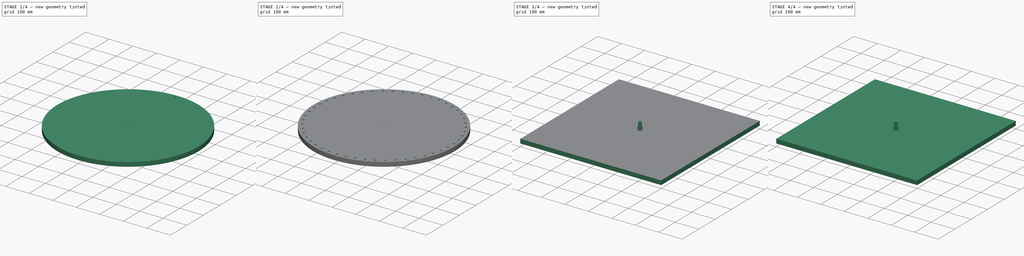
[diagram: build sequence overview — one tinted view per stage of 4, left to right]
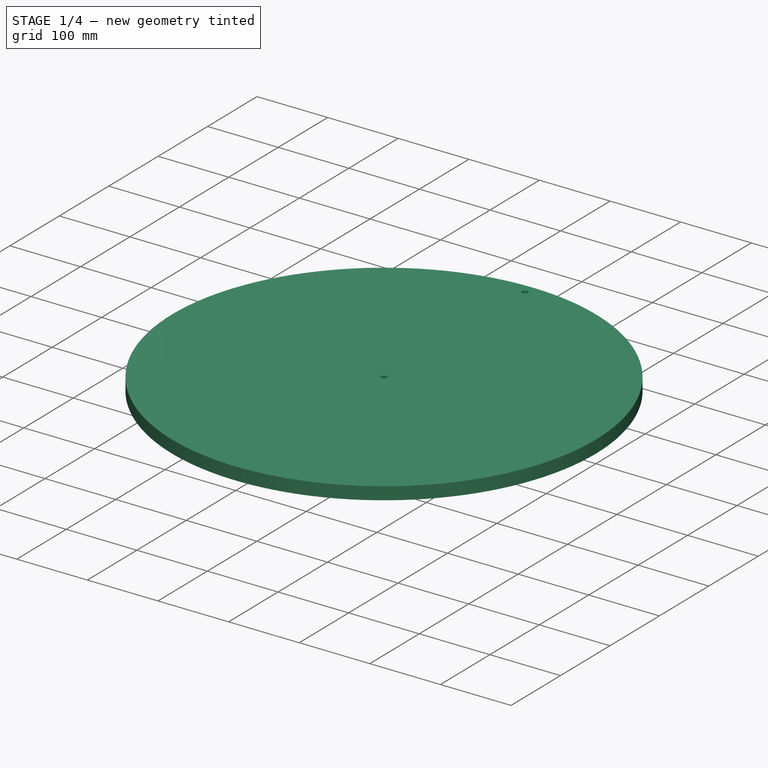
[diagram: stage 1 of 4 — iso view after this stage's code; geometry added in this stage tinted green]
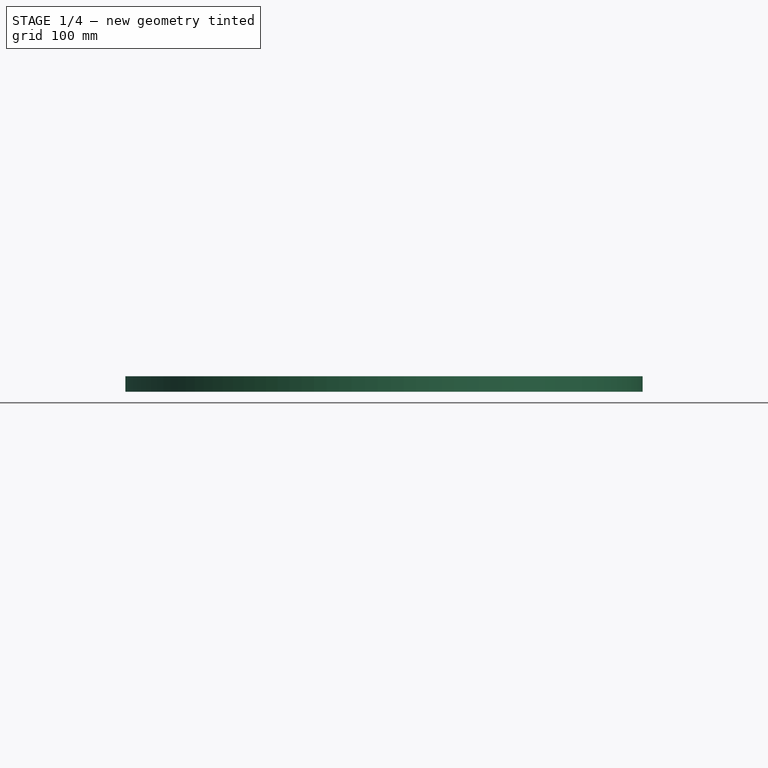
[diagram: stage 1 of 4 — front view after this stage's code; geometry added in this stage tinted green]
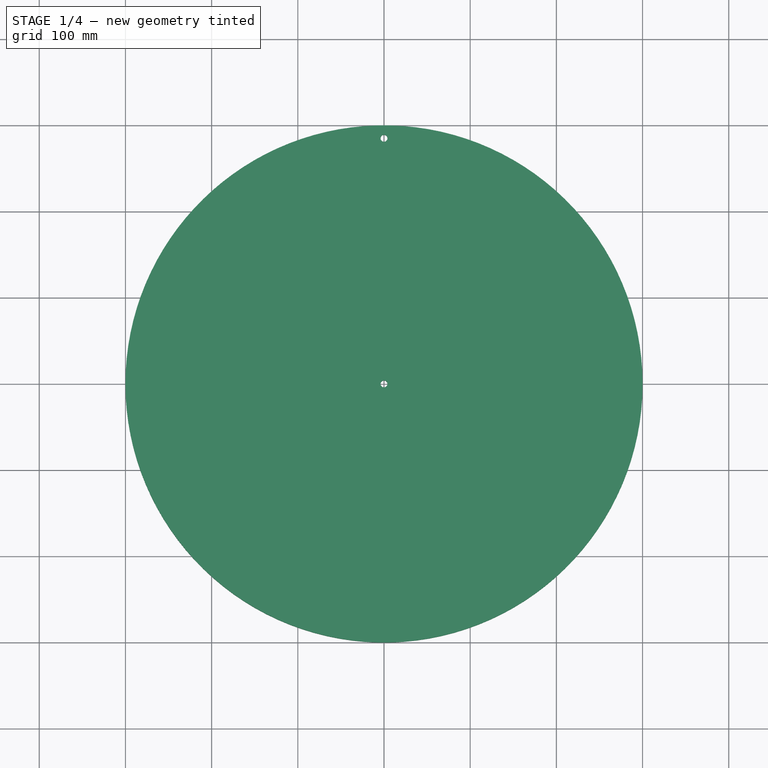
[diagram: stage 1 of 4 — top view after this stage's code; geometry added in this stage tinted green]
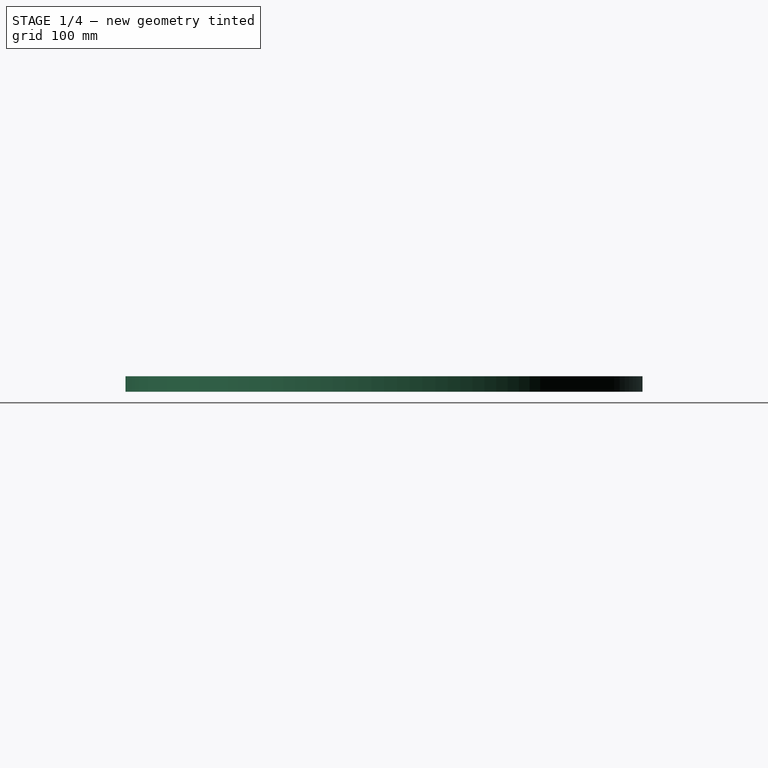
[diagram: stage 1 of 4 — right view after this stage's code; geometry added in this stage tinted green]
FCSTD DOCUMENT  (FreeCAD 0.21R33771 (Git))
Label: SpinWheelB
License: All rights reserved
LicenseURL: http://en.wikipedia.org/wiki/All_rights_reserved
objects: Part::Part2DObjectPython×182, Path::FeaturePython×11, App::DocumentObjectGroup×7, Part::FeaturePython×6, Sketcher::SketchObject×3, PartDesign::Pocket×2, App::FeaturePython×2, PartDesign::Pad×1, PartDesign::PolarPattern×1, PartDesign::Body×1
note: 200 computed .brp shape members not serialized (recipe doc carries the construction recipe); baked Part::Feature solids carry a one-line shape summary decoded from their .brp

FEATURE [Sketcher::SketchObject] Sketch
  FullyConstrained = true
  MapMode = 5
  Support = -> [XY_Plane]
  sketch-geometry (2):
    g0: Circle CenterX=0 CenterY=0 CenterZ=0 NormalX=0 NormalY=0 NormalZ=1 AngleXU=0 Radius=300
    g1: Circle CenterX=0 CenterY=0 CenterZ=0 NormalX=0 NormalY=0 NormalZ=1 AngleXU=0 Radius=4
  constraints (4):
    c: Coincident(g0,g-1)
    c: Diameter(g0) = 600
    c: Coincident(g1,g0)
    c: Diameter(g1) = 8
FEATURE [PartDesign::Pad] Pad
  Direction = (0,0,1)
  Length = 18
  Length2 = 10
  Profile = -> Sketch
  ReferenceAxis = -> Sketch [N_Axis]
  Type = 0
FEATURE [Sketcher::SketchObject] Sketch001
  FullyConstrained = true
  MapMode = 5
  Placement = pos=(0,0,18) rot=(0,0,1;0rad)
  Support = -> [Pad]
  sketch-geometry (1):
    g0: Circle CenterX=0 CenterY=285 CenterZ=0 NormalX=0 NormalY=0 NormalZ=1 AngleXU=0 Radius=4
  constraints (3):
    c: PointOnObject(g0,g-2)
    c: Diameter(g0) = 8
    c: DistanceY(g-1,g0) = 285
FEATURE [PartDesign::Pocket] Pocket
  BaseFeature = -> Pad
  Direction = (0,0,-1)
  Length = 5
  Length2 = 5
  Profile = -> Sketch001
  ReferenceAxis = -> Sketch001 [N_Axis]
  Type = 1
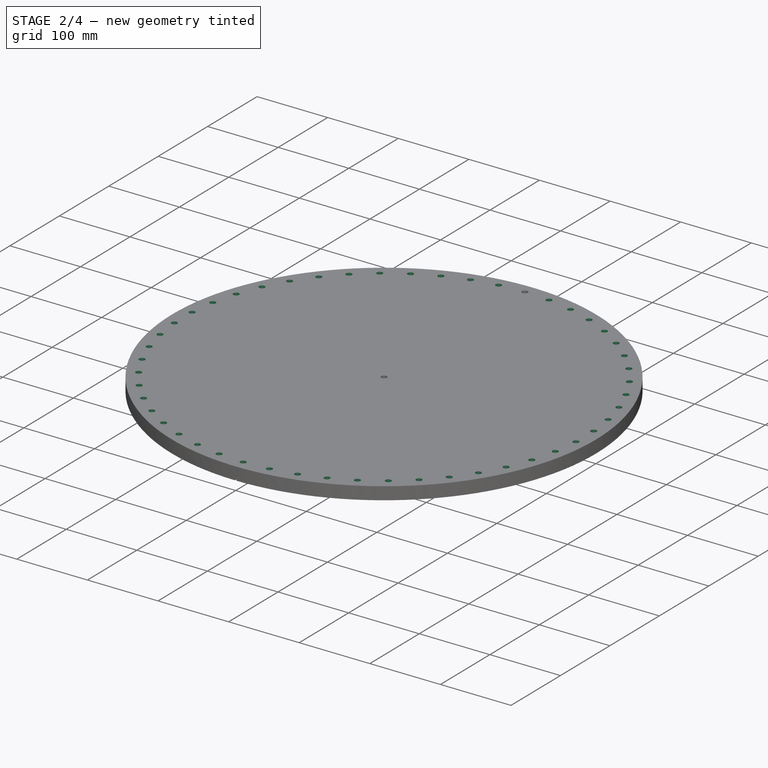
[diagram: stage 2 of 4 — iso view after this stage's code; geometry added in this stage tinted green]
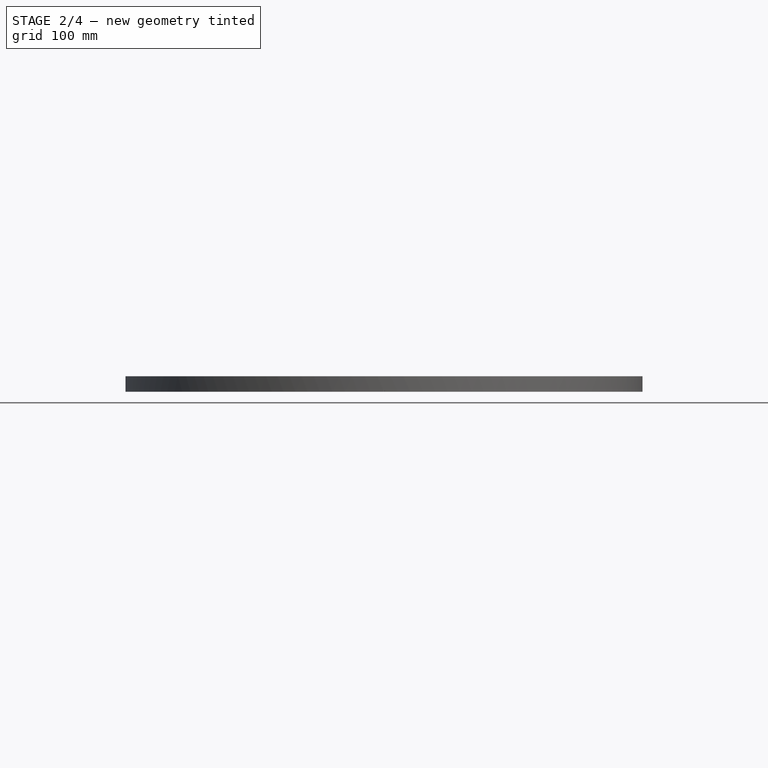
[diagram: stage 2 of 4 — front view after this stage's code; geometry added in this stage tinted green]
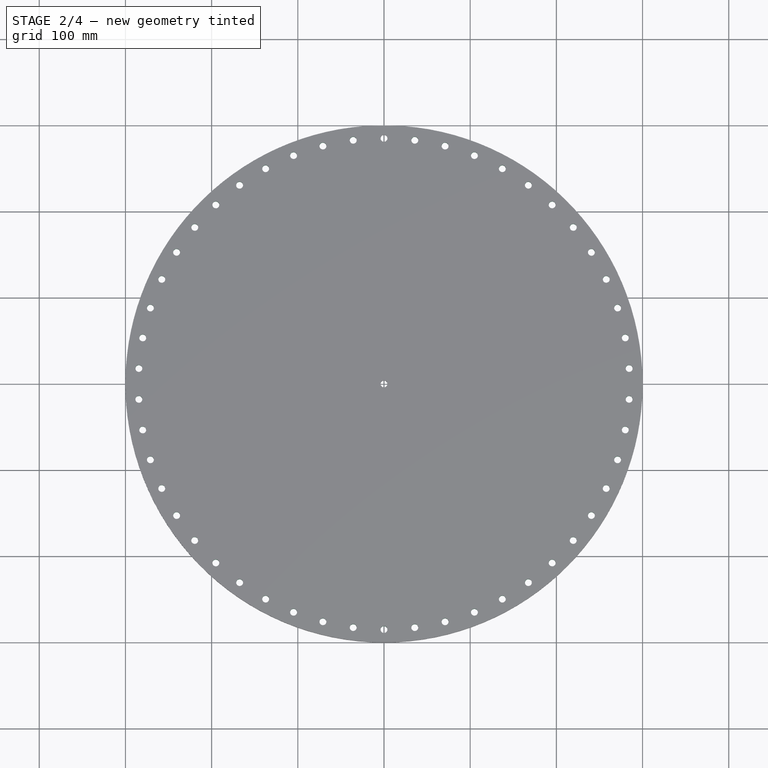
[diagram: stage 2 of 4 — top view after this stage's code; geometry added in this stage tinted green]
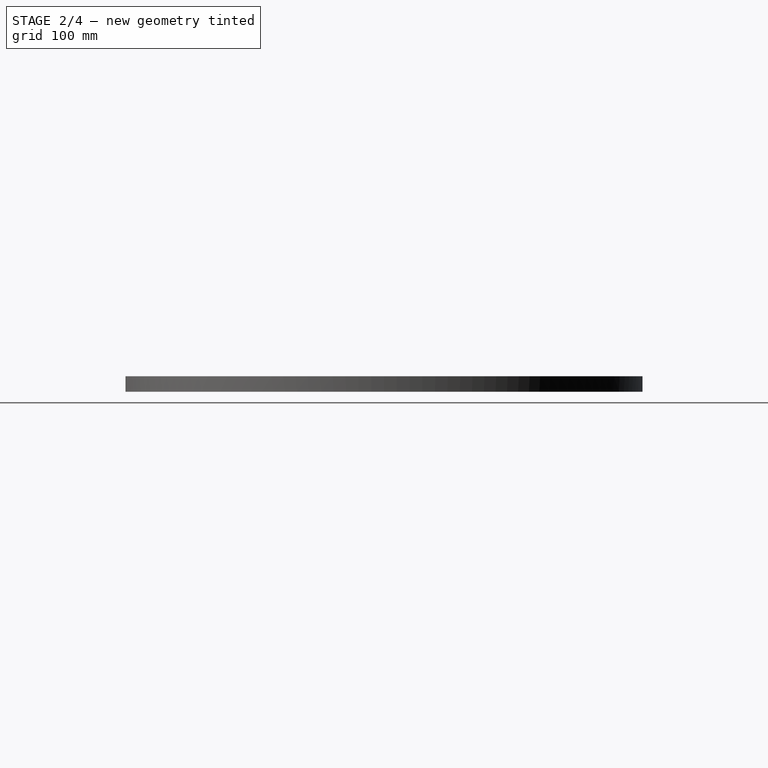
[diagram: stage 2 of 4 — right view after this stage's code; geometry added in this stage tinted green]
FEATURE [PartDesign::PolarPattern] PolarPattern
  Angle = 360
  Axis = -> Sketch001 [N_Axis]
  BaseFeature = -> Pocket
  Occurrences = 50
  Originals = -> [Pocket]
FEATURE [Path::FeaturePython] _mm_Drill  label="8mm Drill001"  # Path/CAM operation (typed FeaturePython)
  HorizFeed = 15
  HorizRapid = 0
  SpindleDir = 0
  SpindleSpeed = 8000
  Tool = -> ToolBit001
  ToolNumber = 2
  VertFeed = 3.33333
  VertRapid = 0
  expr: HorizRapid = SetupSheet.HorizRapid
  expr: VertRapid = SetupSheet.VertRapid
FEATURE [App::DocumentObjectGroup] Tools
  Group = -> [_mm_Drill]
FEATURE [Sketcher::SketchObject] Sketch002
  ExternalGeometry = -> [PolarPattern]
  FullyConstrained = false
  MapMode = 5
  Placement = pos=(0,0,0) rot=(1,0,0;3.14159rad)
  Support = -> [PolarPattern]
  sketch-geometry (4):
    g0: LineSegment StartX=-1 StartY=304.859 StartZ=0 EndX=1 EndY=304.859 EndZ=0
    g1: LineSegment StartX=1 StartY=304.859 StartZ=0 EndX=1 EndY=0 EndZ=0
    g2: LineSegment StartX=1 StartY=0 StartZ=0 EndX=-1 EndY=0 EndZ=0
    g3: LineSegment StartX=-1 StartY=0 StartZ=0 EndX=-1 EndY=304.859 EndZ=0
  constraints (10):
    c: Coincident(g0,g1)
    c: Coincident(g1,g2)
    c: Coincident(g2,g3)
    c: Coincident(g3,g0)
    c: Horizontal(g0)
    c: Horizontal(g2)
    c: Vertical(g1)
    c: Vertical(g3)
    c: Symmetric(g2,g1,g-3)
    c: DistanceX(g0,g0) = 2
FEATURE [PartDesign::Pocket] Pocket001
  BaseFeature = -> PolarPattern
  Direction = (0,0,1)
  Length = 2
  Length2 = 5
  Profile = -> Sketch002
  ReferenceAxis = -> Sketch002 [N_Axis]
  Type = 0
FEATURE [Path::FeaturePython] _5_Deg__V_Bit006  label="45 Deg. V-Bit007"  # Path/CAM operation (typed FeaturePython)
  HorizFeed = 16.6667
  HorizRapid = 0
  SpindleDir = 0
  SpindleSpeed = 12000
  Tool = -> ToolBit002
  ToolNumber = 2
  VertFeed = 3.33333
  VertRapid = 0
  expr: HorizRapid = SetupSheet001.HorizRapid
  expr: VertRapid = SetupSheet001.VertRapid
FEATURE [App::DocumentObjectGroup] Tools001
  Group = -> [_5_Deg__V_Bit006]
FEATURE [Path::FeaturePython] Vcarve  # Path/CAM operation (typed FeaturePython)
  Active = true
  BaseShapes = -> [Clone2D065,Clone2D021,Clone2D076,Clone2D006,Clone2D022,Clone2D020,Clone2D051,Clone2D071,Clone2D024,Clone2D005,Clone2D052,Clone2D050,Clone2D008,Clone2D023,Clone2D026,Clone2D053,Clone2D036,Clone2D072,Clone2D009,Clone2D010,Clone2D,Clone2D055,Clone2D035,Clone2D038,Clone2D007,Clone2D012,Clone2D011,Clone2D039,Clone2D001,Clone2D040,Clone2D073,Clone2D056,Clone2D086,Clone2D041,Clone2D088,Clone2D054,+55 more]
  ClearanceHeight = 1
  Colinear = 10
  CoolantMode = 0
  CycleTime = 01:08:31
  Discretize = 0.01
  FinalDepth = -3
  OpFinalDepth = 0
  OpStartDepth = 18
  OpStockZMax = 18
  OpStockZMin = 0
  OpToolDiameter = 16
  SafeHeight = 1
  StartDepth = 0
  Tolerance = 0.01
  ToolController = -> _5_Deg__V_Bit006
  expr: ClearanceHeight = 1
  expr: FinalDepth = -3
  expr: SafeHeight = 1
  expr: StartDepth = 0
FEATURE [Part::FeaturePython] Clone001  label="Model-Body001"  # Draft clone (typed FeaturePython)
  AttacherType = Attacher::AttachEngine3D
  Fuse = false
  Objects = -> [Body]
  PathResource = Model
  Scale = (1,1,1)
FEATURE [App::DocumentObjectGroup] Model001
  Group = -> [Clone2D,Clone2D001,Clone2D002,Clone2D003,Clone2D004,Clone2D005,Clone2D006,Clone2D007,Clone2D008,Clone2D009,Clone2D010,Clone2D011,Clone2D012,Clone2D013,Clone2D014,Clone2D015,Clone2D016,Clone2D017,Clone2D018,Clone2D019,Clone2D020,Clone2D021,Clone2D022,Clone2D023,Clone2D024,Clone2D025,Clone2D026,Clone2D027,Clone2D028,Clone2D029,Clone2D030,Clone2D031,Clone2D032,Clone2D033,Clone2D034,Clone2D035,+56 more]
FEATURE [Path::FeaturePython] Vcarve001  # Path/CAM operation (typed FeaturePython)
  Active = true
  Base = -> [Clone001]
  ClearanceHeight = 1
  Colinear = 10
  CoolantMode = 0
  CycleTime = 00:01:46
  Discretize = 0.01
  FinalDepth = -3
  OpFinalDepth = 0
  OpStartDepth = 18
  OpStockZMax = 18
  OpStockZMin = 0
  OpToolDiameter = 16
  SafeHeight = 1
  StartDepth = 0
  Tolerance = 0.01
  ToolController = -> _5_Deg__V_Bit006
  expr: ClearanceHeight = 1
  expr: FinalDepth = -3
  expr: SafeHeight = 1
  expr: StartDepth = 0
FEATURE [Path::FeaturePython] Array  # Path/CAM operation (typed FeaturePython)
  Active = true
  Angle = 360
  Base = -> [Vcarve001]
  Centre = (0,0,0)
  Copies = 50
  CopiesX = 0
  CopiesY = 0
  JitterMagnitude = (0,0,0)
  JitterPercent = 0
  JitterSeed = 0
  Offset = (0,0,0)
  SwapDirection = false
  ToolController = -> _5_Deg__V_Bit006
  Type = 2
FEATURE [App::DocumentObjectGroup] Operations001
  Group = -> [Vcarve,Vcarve001,Array]
FEATURE [Path::FeaturePython] Job001  label="VCarveJob"  # Path/CAM operation (typed FeaturePython)
  CycleTime = 01:10:17
  Fixtures = G54
  GeometryTolerance = 0.01
  JobType = 0
  Model = -> Model001
  Operations = -> Operations001
  OrderOutputBy = 0
  PostProcessor = 4
  PostProcessorOutputFile = %D/%d-%j.ngc
  SetupSheet = -> SetupSheet001
  SplitOutput = false
  Stock = -> Stock002
  Tools = -> Tools001
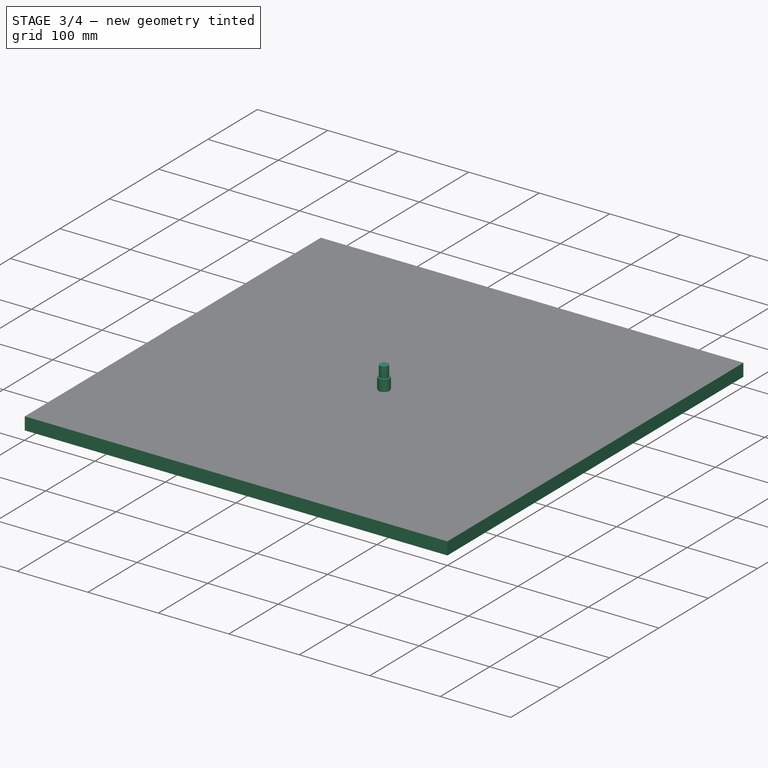
[diagram: stage 3 of 4 — iso view after this stage's code; geometry added in this stage tinted green]
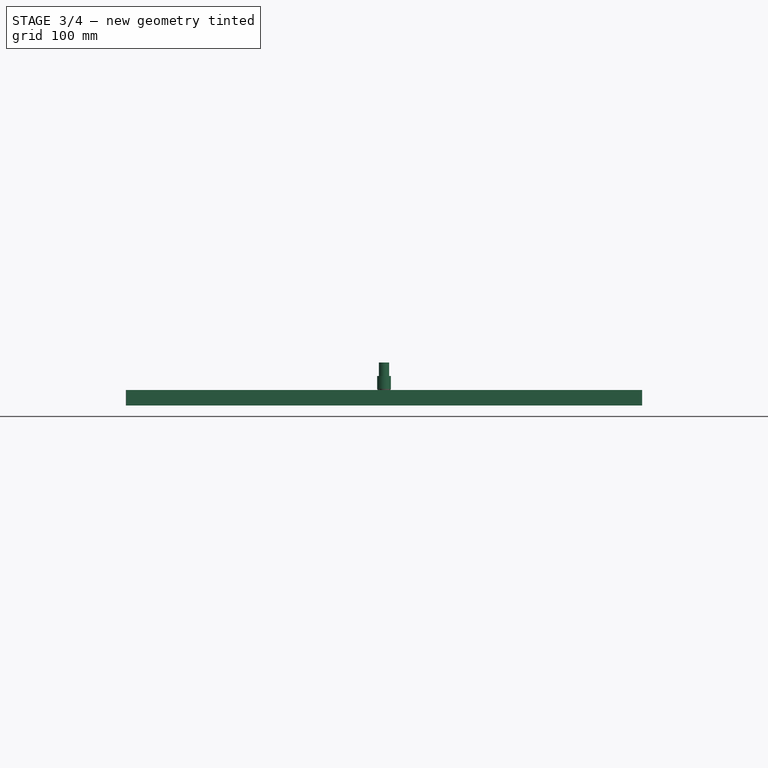
[diagram: stage 3 of 4 — front view after this stage's code; geometry added in this stage tinted green]
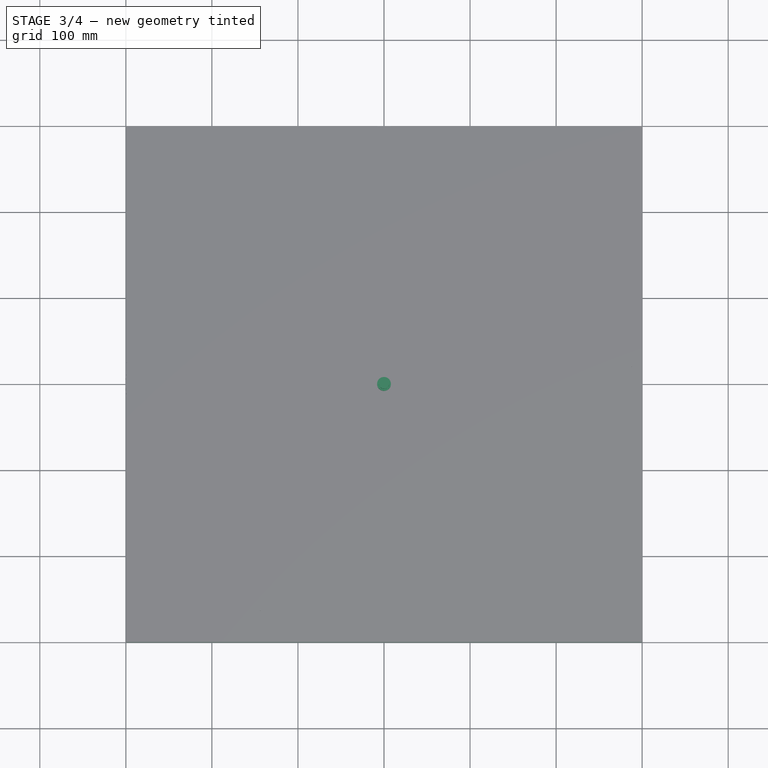
[diagram: stage 3 of 4 — top view after this stage's code; geometry added in this stage tinted green]
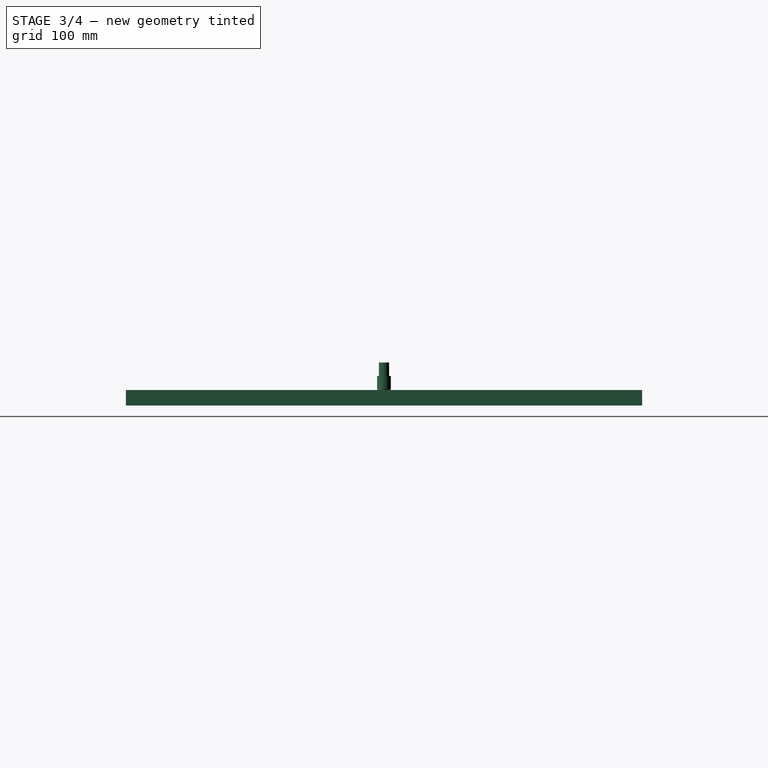
[diagram: stage 3 of 4 — right view after this stage's code; geometry added in this stage tinted green]
FEATURE [Part::FeaturePython] ToolBit001  label="8mm Drill"  # Path/CAM toolbit (typed FeaturePython)
  BitPropertyNames = Chipload | Diameter | Flutes | Length | Material | TipAngle
  BitShape = /app/freecad/Mod/Path/Tools/Shape/drill.fcstd
  Chipload = 0
  Diameter = 8
  File = <userpath>/MensShed/CNCRouter/FreeCAD/Bit/8mm_Drill.fctb
  Flutes = 0
  Length = 50
  Material = 0
  ShapeName = drill
  TipAngle = 119
FEATURE [App::DocumentObjectGroup] Model
  Group = -> [Clone]
FEATURE [Path::FeaturePython] Drilling  # Path/CAM operation (typed FeaturePython)
  Active = true
  AddTipLength = false
  Base = -> [Clone]
  ClearanceHeight = 23
  CoolantMode = 0
  CycleTime = 00:02:28
  Disabled = Clone.Face41
  DwellEnabled = false
  DwellTime = 1
  ExtraOffset = 0
  FinalDepth = 3
  KeepToolDown = false
  OpFinalDepth = 18
  OpStartDepth = 19
  OpStockZMax = 18
  OpStockZMin = 0
  OpToolDiameter = 8
  PeckDepth = 6
  PeckEnabled = false
  RetractHeight = 21
  RetractMode = 0
  SafeHeight = 21
  StartDepth = 18
  ToolController = -> _mm_Drill
  chipBreakEnabled = false
  expr: ClearanceHeight = OpStockZMax + SetupSheet.ClearanceHeightOffset
  expr: FinalDepth = 3
  expr: PeckDepth = OpToolDiameter * 0.75
  expr: RetractHeight = StartDepth + SetupSheet.SafeHeightOffset
  expr: SafeHeight = OpStockZMax + SetupSheet.SafeHeightOffset
  expr: StartDepth = 18
FEATURE [Path::FeaturePython] Drilling001  label="DrillingCentre"  # Path/CAM operation (typed FeaturePython)
  Active = true
  AddTipLength = false
  Base = -> [Clone]
  ClearanceHeight = 23
  CoolantMode = 0
  CycleTime = 00:00:31
  Disabled = Clone.Face4 | Clone.Face5 | Clone.Face6 | Clone.Face7 | Clone.Face8 | Clone.Face9 | Clone.Face10 | Clone.Face11 | Clone.Face12 | Clone.Face13 | Clone.Face14 | Clone.Face15 | Clone.Face16 | Clone.Face17 | Clone.Face18 | Clone.Face19 | Clone.Face20 | Clone.Face21 | Clone.Face22 | Clone.Face23 | Clone.Face24 | Clone.Face25 | Clone.Face26 | Clone.Face27 | Clone.Face28 | Clone.Face29 | Clone.Face30 | Clone.Face31 | Clone.Face32 | Clone.Face33 | Clone.Face34 | Clone.Face35 | Clone.Face36 | Clone.Face37 | Clone.Face38 | Clone.Face39 | Clone.Face40 | Clone.Face42 | Clone.Face43 | Clone.Face44 | Clone.Face45 | Clone.Face46 | Clone.Face47 | Clone.Face48 | Clone.Face49 | Clone.Face50 | Clone.Face51 | Clone.Face52 | Clone.Face53 | Clone.Face54
  DwellEnabled = false
  DwellTime = 1
  ExtraOffset = 0
  FinalDepth = 3
  KeepToolDown = false
  OpFinalDepth = 18
  OpStartDepth = 19
  OpStockZMax = 18
  OpStockZMin = 0
  OpToolDiameter = 8
  PeckDepth = 6
  PeckEnabled = false
  RetractHeight = 21
  RetractMode = 0
  SafeHeight = 21
  StartDepth = 18
  ToolController = -> _mm_Drill
  chipBreakEnabled = false
  expr: ClearanceHeight = OpStockZMax + SetupSheet.ClearanceHeightOffset
  expr: FinalDepth = 3
  expr: PeckDepth = OpToolDiameter * 0.75
  expr: RetractHeight = StartDepth + SetupSheet.SafeHeightOffset
  expr: SafeHeight = OpStockZMax + SetupSheet.SafeHeightOffset
  expr: StartDepth = 18
FEATURE [Path::FeaturePython] Profile  # Path/CAM operation (typed FeaturePython)
  Active = true
  AreaParams:
    Tolerance = 1e-07
    FitArcs = True
    Simplify = False
    CleanDistance = 0.0
    Accuracy = 0.01
    Unit = 1.0
    MinArcPoints = 4
    MaxArcPoints = 100
    ClipperScale = 10000000.0
    Fill = 0
    Coplanar = 0
    Reorient = True
    Outline = False
    Explode = False
    OpenMode = 0
    Deflection = 0.01
    SubjectFill = 0
    ClipFill = 0
    Offset = 4.0
    ExtraPass = 0
    Stepover = 0.0
    LastStepover = 0.0
    JoinType = 0
    EndType = 0
    MiterLimit = 2.0
    RoundPrecision = 0.0
    PocketMode = 0
    ToolRadius = 1.0
    PocketExtraOffset = 0.0
    PocketStepover = 0.0
    PocketLastStepover = 0.0
    FromCenter = False
    Angle = 45.0
    AngleShift = 0.0
    Shift = 0.0
    Thicken = False
    SectionCount = -1
    Stepdown = 1.0
    SectionOffset = 0.0
    SectionTolerance = 1e-07
    SectionMode = 2
    Project = False
  Base = -> [Clone]
  ClearanceHeight = 23
  CoolantMode = 0
  CycleTime = 00:00:06
  Direction = 0
  FinalDepth = 0
  HandleMultipleFeatures = 0
  JoinType = 0
  MiterLimit = 0.1
  OffsetExtra = 0
  OpFinalDepth = 0
  OpStartDepth = 18
  OpStockZMax = 18
  OpStockZMin = 0
  OpToolDiameter = 8
  PathParams = {'orientation': 1, 'feedrate': 15.0, 'feedrate_v': 3.3333333333333335, 'verbose': True, 'resume_height': 21.0, 'retraction': 23.0, 'return_end': True, 'preamble': False}
  SafeHeight = 21
  Side = 0
  SplitArcs = false
  StartDepth = 18
  StartPoint = (0,0,0)
  StepDown = 5
  ToolController = -> _mm_Drill
  UseComp = true
  UseStartPoint = false
  processCircles = false
  processHoles = false
  processPerimeter = true
  expr: ClearanceHeight = OpStockZMax + SetupSheet.ClearanceHeightOffset
  expr: FinalDepth = 0
  expr: SafeHeight = OpStockZMax + SetupSheet.SafeHeightOffset
  expr: StartDepth = 18
  expr: StepDown = 5
FEATURE [Path::FeaturePython] DressupTag  # Path/CAM operation (typed FeaturePython)
  Angle = 45
  Base = -> Profile
  Disabled = [0,1,2,3]
  Height = 9
  Positions = (4) [(-207.863,-221.831,1e-07),(-221.831,207.863,1e-07),(111.757,282.712,1e-07),(282.712,-111.757,1e-07)]
  Radius = 0
  SegmentationFactor = 50
  Width = 95.5
FEATURE [App::DocumentObjectGroup] Operations
  Group = -> [Drilling,Drilling001,DressupTag]
FEATURE [Path::FeaturePython] Job  label="HolesJob"  # Path/CAM operation (typed FeaturePython)
  CycleTime = 00:03:05
  Fixtures = G54
  GeometryTolerance = 0.01
  JobType = 0
  LastPostProcessDate = 2024-05-14 08:25:52.418972
  LastPostProcessOutput = <userpath>/MensShed/CNCRouter/JNorris/SpinWheelA-Job.ngc
  Model = -> Model
  Operations = -> Operations
  OrderOutputBy = 0
  PostProcessor = 3
  PostProcessorOutputFile = %D/%d-%j.ngc
  SetupSheet = -> SetupSheet
  SplitOutput = false
  Stock = -> Stock001
  Tools = -> Tools
FEATURE [Part::Part2DObjectPython] ShapeString  label="5"  # Draft 2D object (typed FeaturePython)
  FontFile = /run/user/1000/doc/a87cd573/FreeMono.ttf
  MakeFace = true
  Placement = pos=(262,0,0) rot=(0,0,-1;1.5708rad)
  Size = 8
  String = 5
  Tracking = 0
FEATURE [Part::Part2DObjectPython] ShapeString001  label="2+[space]"  # Draft 2D object (typed FeaturePython)
  FontFile = /run/user/1000/doc/a87cd573/FreeMono.ttf
  MakeFace = true
  Placement = pos=(261.77,10.9714,0) rot=(0,0,-1;1.52891rad)
  Size = 8
  String = 2
  Tracking = 0
FEATURE [Part::Part2DObjectPython] ShapeString002  label="7"  # Draft 2D object (typed FeaturePython)
  FontFile = /run/user/1000/doc/a87cd573/FreeMono.ttf
  MakeFace = true
  Placement = pos=(259.934,32.8373,0) rot=(0,0,-1;1.44513rad)
  Size = 8
  String = 7
  Tracking = 0
FEATURE [Part::Part2DObjectPython] ShapeString003  label="1+[space]"  # Draft 2D object (typed FeaturePython)
  FontFile = /run/user/1000/doc/a87cd573/FreeMono.ttf
  MakeFace = true
  Placement = pos=(258.331,43.6934,0) rot=(0,0,-1;1.40325rad)
  Size = 8
  String = 1
  Tracking = 0
FEATURE [Part::Part2DObjectPython] ShapeString004  label="2+[space]001"  # Draft 2D object (typed FeaturePython)
  FontFile = /run/user/1000/doc/a87cd573/FreeMono.ttf
  MakeFace = true
  Placement = pos=(253.769,65.1568,0) rot=(0,0,-1;1.31947rad)
  Size = 8
  String = 2
  Tracking = 0
FEATURE [Part::Part2DObjectPython] ShapeString005  label="2"  # Draft 2D object (typed FeaturePython)
  FontFile = /run/user/1000/doc/a87cd573/FreeMono.ttf
  MakeFace = true
  Placement = pos=(243.601,96.4486,0) rot=(0,0,-1;1.19381rad)
  Size = 8
  String = 2
  Tracking = 0
FEATURE [Part::Part2DObjectPython] ShapeString006  label="4+[space]"  # Draft 2D object (typed FeaturePython)
  FontFile = /run/user/1000/doc/a87cd573/FreeMono.ttf
  MakeFace = true
  Placement = pos=(239.349,106.565,0) rot=(0,0,-1;1.15192rad)
  Size = 8
  String = 4
  Tracking = 0
FEATURE [Part::Part2DObjectPython] ShapeString007  label="6"  # Draft 2D object (typed FeaturePython)
  FontFile = /run/user/1000/doc/a87cd573/FreeMono.ttf
  MakeFace = true
  Placement = pos=(229.592,126.219,0) rot=(0,0,-1;1.06814rad)
  Size = 8
  String = 6
  Tracking = 0
FEATURE [Part::Part2DObjectPython] ShapeString008  label="2001+[space]"  # Draft 2D object (typed FeaturePython)
  FontFile = /run/user/1000/doc/a87cd573/FreeMono.ttf
  MakeFace = true
  Placement = pos=(224.105,135.723,0) rot=(0,0,-1;1.02625rad)
  Size = 8
  String = 2
  Tracking = 0
FEATURE [Part::Part2DObjectPython] ShapeString009  label="1"  # Draft 2D object (typed FeaturePython)
  FontFile = /run/user/1000/doc/a87cd573/FreeMono.ttf
  MakeFace = true
  Placement = pos=(211.962,154,0) rot=(0,0,-1;0.942478rad)
  Size = 8
  String = 1
  Tracking = 0
FEATURE [Part::Part2DObjectPython] ShapeString010  label="4+[space]001"  # Draft 2D object (typed FeaturePython)
  FontFile = /run/user/1000/doc/a87cd573/FreeMono.ttf
  MakeFace = true
  Placement = pos=(205.328,162.741,0) rot=(0,0,-1;0.90059rad)
  Size = 8
  String = 4
  Tracking = 0
FEATURE [Part::Part2DObjectPython] ShapeString011  label="4"  # Draft 2D object (typed FeaturePython)
  FontFile = /run/user/1000/doc/a87cd573/FreeMono.ttf
  MakeFace = true
  Placement = pos=(190.99,179.351,0) rot=(0,0,-1;0.816814rad)
  Size = 8
  String = 4
  Tracking = 0
FEATURE [Part::Part2DObjectPython] ShapeString012  label="1001+[space]"  # Draft 2D object (typed FeaturePython)
  FontFile = /run/user/1000/doc/a87cd573/FreeMono.ttf
  MakeFace = true
  Placement = pos=(183.312,187.192,0) rot=(0,0,-1;0.774926rad)
  Size = 8
  String = 1
  Tracking = 0
FEATURE [Part::Part2DObjectPython] ShapeString013  label="2001"  # Draft 2D object (typed FeaturePython)
  FontFile = /run/user/1000/doc/a87cd573/FreeMono.ttf
  MakeFace = true
  Placement = pos=(167.005,201.874,0) rot=(0,0,-1;0.69115rad)
  Size = 8
  String = 2
  Tracking = 0
FEATURE [Part::Part2DObjectPython] ShapeString014  label="2002+[space]"  # Draft 2D object (typed FeaturePython)
  FontFile = /run/user/1000/doc/a87cd573/FreeMono.ttf
  MakeFace = true
  Placement = pos=(158.405,208.691,0) rot=(0,0,-1;0.649262rad)
  Size = 8
  String = 2
  Tracking = 0
FEATURE [Part::Part2DObjectPython] ShapeString015  label="4001"  # Draft 2D object (typed FeaturePython)
  FontFile = /run/user/1000/doc/a87cd573/FreeMono.ttf
  MakeFace = true
  Placement = pos=(140.387,221.214,0) rot=(0,0,-1;0.565487rad)
  Size = 8
  String = 4
  Tracking = 0
FEATURE [Part::Part2DObjectPython] ShapeString016  label="3+[space]"  # Draft 2D object (typed FeaturePython)
  FontFile = /run/user/1000/doc/a87cd573/FreeMono.ttf
  MakeFace = true
  Placement = pos=(131,226.899,0) rot=(0,0,-1;0.523599rad)
  Size = 8
  String = 3
  Tracking = 0
FEATURE [Part::Part2DObjectPython] ShapeString017  label="6001"  # Draft 2D object (typed FeaturePython)
  FontFile = /run/user/1000/doc/a87cd573/FreeMono.ttf
  MakeFace = true
  Placement = pos=(111.554,237.065,0) rot=(0,0,-1;0.439823rad)
  Size = 8
  String = 6
  Tracking = 0
FEATURE [Part::Part2DObjectPython] ShapeString018  label="1001+[space]001"  # Draft 2D object (typed FeaturePython)
  FontFile = /run/user/1000/doc/a87cd573/FreeMono.ttf
  MakeFace = true
  Placement = pos=(101.529,241.528,0) rot=(0,0,-1;0.397935rad)
  Size = 8
  String = 1
  Tracking = 0
FEATURE [Part::Part2DObjectPython] ShapeString019  label="1001+[space]002"  # Draft 2D object (typed FeaturePython)
  FontFile = /run/user/1000/doc/a87cd573/FreeMono.ttf
  MakeFace = true
  Placement = pos=(80.9625,249.177,0) rot=(0,0,-1;0.314159rad)
  Size = 8
  String = 1
  Tracking = 0
FEATURE [Part::Part2DObjectPython] ShapeString020  label="0"  # Draft 2D object (typed FeaturePython)
  FontFile = /run/user/1000/doc/a87cd573/FreeMono.ttf
  MakeFace = true
  Placement = pos=(49.0939,257.359,0) rot=(0,0,-1;0.188496rad)
  Size = 8
  String = 0
  Tracking = 0
FEATURE [Part::Part2DObjectPython] ShapeString021  label="4002+[space]"  # Draft 2D object (typed FeaturePython)
  FontFile = /run/user/1000/doc/a87cd573/FreeMono.ttf
  MakeFace = true
  Placement = pos=(38.2738,259.189,0) rot=(0,0,-1;0.146608rad)
  Size = 8
  String = 4
  Tracking = 0
FEATURE [Part::Part2DObjectPython] ShapeString022  label="3"  # Draft 2D object (typed FeaturePython)
  FontFile = /run/user/1000/doc/a87cd573/FreeMono.ttf
  MakeFace = true
  Placement = pos=(16.4511,261.483,0) rot=(0,0,-1;0.062832rad)
  Size = 8
  String = 3
  Tracking = 0
FEATURE [Part::Part2DObjectPython] ShapeString023  label="3001+[space]"  # Draft 2D object (typed FeaturePython)
  FontFile = /run/user/1000/doc/a87cd573/FreeMono.ttf
  MakeFace = true
  Placement = pos=(5.48691,261.943,0) rot=(0,0,-1;0.020944rad)
  Size = 8
  String = 3
  Tracking = 0
FEATURE [Part::Part2DObjectPython] ShapeString024  label="1001"  # Draft 2D object (typed FeaturePython)
  FontFile = /run/user/1000/doc/a87cd573/FreeMono.ttf
  MakeFace = true
  Placement = pos=(-16.4511,261.483,0) rot=(0,0,1;0.062832rad)
  Size = 8
  String = 1
  Tracking = 0
FEATURE [Part::Part2DObjectPython] ShapeString025  label="1002+[space]"  # Draft 2D object (typed FeaturePython)
  FontFile = /run/user/1000/doc/a87cd573/FreeMono.ttf
  MakeFace = true
  Placement = pos=(-27.3865,260.565,0) rot=(0,0,1;0.10472rad)
  Size = 8
  String = 1
  Tracking = 0
FEATURE [Part::Part2DObjectPython] ShapeString026  label="1002"  # Draft 2D object (typed FeaturePython)
  FontFile = /run/user/1000/doc/a87cd573/FreeMono.ttf
  MakeFace = true
  Placement = pos=(-49.0939,257.359,0) rot=(0,0,1;0.188496rad)
  Size = 8
  String = 1
  Tracking = 0
FEATURE [Part::Part2DObjectPython] ShapeString027  label="3001+[space]001"  # Draft 2D object (typed FeaturePython)
  FontFile = /run/user/1000/doc/a87cd573/FreeMono.ttf
  MakeFace = true
  Placement = pos=(-59.8279,255.078,0) rot=(0,0,1;0.230383rad)
  Size = 8
  String = 3
  Tracking = 0
FEATURE [Part::Part2DObjectPython] ShapeString028  label="0001"  # Draft 2D object (typed FeaturePython)
  FontFile = /run/user/1000/doc/a87cd573/FreeMono.ttf
  MakeFace = true
  Placement = pos=(-80.9625,249.177,0) rot=(0,0,1;0.314159rad)
  Size = 8
  String = 0
  Tracking = 0
FEATURE [Part::Part2DObjectPython] ShapeString029  label="3001+[space]002"  # Draft 2D object (typed FeaturePython)
  FontFile = /run/user/1000/doc/a87cd573/FreeMono.ttf
  MakeFace = true
  Placement = pos=(-91.3259,245.568,0) rot=(0,0,1;0.356047rad)
  Size = 8
  String = 3
  Tracking = 0
FEATURE [Part::Part2DObjectPython] ShapeString030  label="6002"  # Draft 2D object (typed FeaturePython)
  FontFile = /run/user/1000/doc/a87cd573/FreeMono.ttf
  MakeFace = true
  Placement = pos=(-111.554,237.065,0) rot=(0,0,1;0.439823rad)
  Size = 8
  String = 6
  Tracking = 0
FEATURE [Part::Part2DObjectPython] ShapeString031  label="4002+[space]001"  # Draft 2D object (typed FeaturePython)
  FontFile = /run/user/1000/doc/a87cd573/FreeMono.ttf
  MakeFace = true
  Placement = pos=(-121.384,232.185,0) rot=(0,0,1;0.481711rad)
  Size = 8
  String = 4
  Tracking = 0
FEATURE [Part::Part2DObjectPython] ShapeString032  label="9"  # Draft 2D object (typed FeaturePython)
  FontFile = /run/user/1000/doc/a87cd573/FreeMono.ttf
  MakeFace = true
  Placement = pos=(-140.387,221.214,0) rot=(0,0,1;0.565487rad)
  Size = 8
  String = 9
  Tracking = 0
FEATURE [Part::Part2DObjectPython] ShapeString033  label="3001+[space]003"  # Draft 2D object (typed FeaturePython)
  FontFile = /run/user/1000/doc/a87cd573/FreeMono.ttf
  MakeFace = true
  Placement = pos=(-149.527,215.141,0) rot=(0,0,1;0.607375rad)
  Size = 8
  String = 3
  Tracking = 0
FEATURE [Part::Part2DObjectPython] ShapeString034  label="9001+[space]"  # Draft 2D object (typed FeaturePython)
  FontFile = /run/user/1000/doc/a87cd573/FreeMono.ttf
  MakeFace = true
  Placement = pos=(-167.005,201.874,0) rot=(0,0,1;0.69115rad)
  Size = 8
  String = 9
  Tracking = 0
FEATURE [Part::Part2DObjectPython] ShapeString035  label="4002"  # Draft 2D object (typed FeaturePython)
  FontFile = /run/user/1000/doc/a87cd573/FreeMono.ttf
  MakeFace = true
  Placement = pos=(-190.99,179.351,0) rot=(0,0,1;0.816814rad)
  Size = 8
  String = 4
  Tracking = 0
FEATURE [Part::Part2DObjectPython] ShapeString036  label="4003+[space]"  # Draft 2D object (typed FeaturePython)
  FontFile = /run/user/1000/doc/a87cd573/FreeMono.ttf
  MakeFace = true
  Placement = pos=(-198.333,171.196,0) rot=(0,0,1;0.858702rad)
  Size = 8
  String = 4
  Tracking = 0
FEATURE [Part::Part2DObjectPython] ShapeString037  label="8"  # Draft 2D object (typed FeaturePython)
  FontFile = /run/user/1000/doc/a87cd573/FreeMono.ttf
  MakeFace = true
  Placement = pos=(-211.962,154,0) rot=(0,0,1;0.942478rad)
  Size = 8
  String = 8
  Tracking = 0
FEATURE [Part::Part2DObjectPython] ShapeString038  label="2002+[space]001"  # Draft 2D object (typed FeaturePython)
  FontFile = /run/user/1000/doc/a87cd573/FreeMono.ttf
  MakeFace = true
  Placement = pos=(-218.225,144.989,0) rot=(0,0,1;0.984366rad)
  Size = 8
  String = 2
  Tracking = 0
FEATURE [Part::Part2DObjectPython] ShapeString039  label="5001+[space]"  # Draft 2D object (typed FeaturePython)
  FontFile = /run/user/1000/doc/a87cd573/FreeMono.ttf
  MakeFace = true
  Placement = pos=(-229.592,126.219,0) rot=(0,0,1;1.06814rad)
  Size = 8
  String = 5
  Tracking = 0
FEATURE [Part::Part2DObjectPython] ShapeString040  label="9001"  # Draft 2D object (typed FeaturePython)
  FontFile = /run/user/1000/doc/a87cd573/FreeMono.ttf
  MakeFace = true
  Placement = pos=(-243.601,96.4486,0) rot=(0,0,1;1.19381rad)
  Size = 8
  String = 9
  Tracking = 0
FEATURE [Part::Part2DObjectPython] ShapeString041  label="2002+[space]002"  # Draft 2D object (typed FeaturePython)
  FontFile = /run/user/1000/doc/a87cd573/FreeMono.ttf
  MakeFace = true
  Placement = pos=(-247.427,86.1631,0) rot=(0,0,1;1.23569rad)
  Size = 8
  String = 2
  Tracking = 0
FEATURE [Part::Part2DObjectPython] ShapeString042  label="1003"  # Draft 2D object (typed FeaturePython)
  FontFile = /run/user/1000/doc/a87cd573/FreeMono.ttf
  MakeFace = true
  Placement = pos=(-253.769,65.1568,0) rot=(0,0,1;1.31947rad)
  Size = 8
  String = 1
  Tracking = 0
FEATURE [Part::Part2DObjectPython] ShapeString043  label="2002+[space]003"  # Draft 2D object (typed FeaturePython)
  FontFile = /run/user/1000/doc/a87cd573/FreeMono.ttf
  MakeFace = true
  Placement = pos=(-256.275,54.4729,0) rot=(0,0,1;1.36136rad)
  Size = 8
  String = 2
  Tracking = 0
FEATURE [Part::Part2DObjectPython] ShapeString044  label="3001"  # Draft 2D object (typed FeaturePython)
  FontFile = /run/user/1000/doc/a87cd573/FreeMono.ttf
  MakeFace = true
  Placement = pos=(-259.934,32.8373,0) rot=(0,0,1;1.44513rad)
  Size = 8
  String = 3
  Tracking = 0
FEATURE [Part::Part2DObjectPython] ShapeString045  label="2002+[space]004"  # Draft 2D object (typed FeaturePython)
  FontFile = /run/user/1000/doc/a87cd573/FreeMono.ttf
  MakeFace = true
  Placement = pos=(-261.081,21.9236,0) rot=(0,0,1;1.48702rad)
  Size = 8
  String = 2
  Tracking = 0
FEATURE [Part::Part2DObjectPython] ShapeString046  label="9002"  # Draft 2D object (typed FeaturePython)
  FontFile = /run/user/1000/doc/a87cd573/FreeMono.ttf
  MakeFace = true
  Placement = pos=(-262,3.21e-14,0) rot=(0,0,1;1.5708rad)
  Size = 8
  String = 9
  Tracking = 0
FEATURE [Part::Part2DObjectPython] ShapeString047  label="4003+[space]001"  # Draft 2D object (typed FeaturePython)
  FontFile = /run/user/1000/doc/a87cd573/FreeMono.ttf
  MakeFace = true
  Placement = pos=(-261.77,-10.9714,0) rot=(0,0,1;1.61268rad)
  Size = 8
  String = 4
  Tracking = 0
FEATURE [Part::Part2DObjectPython] ShapeString048  label="3002+[space]"  # Draft 2D object (typed FeaturePython)
  FontFile = /run/user/1000/doc/a87cd573/FreeMono.ttf
  MakeFace = true
  Placement = pos=(-259.934,-32.8373,0) rot=(0,0,1;1.69646rad)
  Size = 8
  String = 3
  Tracking = 0
FEATURE [Part::Part2DObjectPython] ShapeString049  label="0002"  # Draft 2D object (typed FeaturePython)
  FontFile = /run/user/1000/doc/a87cd573/FreeMono.ttf
  MakeFace = true
  Placement = pos=(-253.769,-65.1568,0) rot=(0,0,1;1.82212rad)
  Size = 8
  String = 0
  Tracking = 0
FEATURE [Part::Part2DObjectPython] ShapeString050  label="5001+[space]001"  # Draft 2D object (typed FeaturePython)
  FontFile = /run/user/1000/doc/a87cd573/FreeMono.ttf
  MakeFace = true
  Placement = pos=(-250.818,-75.7263,0) rot=(0,0,1;1.86401rad)
  Size = 8
  String = 5
  Tracking = 0
FEATURE [Part::Part2DObjectPython] ShapeString051  label="3002"  # Draft 2D object (typed FeaturePython)
  FontFile = /run/user/1000/doc/a87cd573/FreeMono.ttf
  MakeFace = true
  Placement = pos=(-243.601,-96.4486,0) rot=(0,0,1;1.94779rad)
  Size = 8
  String = 3
  Tracking = 0
FEATURE [Part::Part2DObjectPython] ShapeString052  label="4003+[space]002"  # Draft 2D object (typed FeaturePython)
  FontFile = /run/user/1000/doc/a87cd573/FreeMono.ttf
  MakeFace = true
  Placement = pos=(-239.349,-106.565,0) rot=(0,0,1;1.98968rad)
  Size = 8
  String = 4
  Tracking = 0
FEATURE [Part::Part2DObjectPython] ShapeString053  label="5001"  # Draft 2D object (typed FeaturePython)
  FontFile = /run/user/1000/doc/a87cd573/FreeMono.ttf
  MakeFace = true
  Placement = pos=(-229.592,-126.219,0) rot=(0,0,1;2.07345rad)
  Size = 8
  String = 5
  Tracking = 0
FEATURE [Part::Part2DObjectPython] ShapeString054  label="1004+[space]"  # Draft 2D object (typed FeaturePython)
  FontFile = /run/user/1000/doc/a87cd573/FreeMono.ttf
  MakeFace = true
  Placement = pos=(-224.105,-135.723,0) rot=(0,0,1;2.11534rad)
  Size = 8
  String = 1
  Tracking = 0
FEATURE [Part::Part2DObjectPython] ShapeString055  label="6003"  # Draft 2D object (typed FeaturePython)
  FontFile = /run/user/1000/doc/a87cd573/FreeMono.ttf
  MakeFace = true
  Placement = pos=(-211.962,-154,0) rot=(0,0,1;2.19911rad)
  Size = 8
  String = 6
  Tracking = 0
FEATURE [Part::Part2DObjectPython] ShapeString056  label="3003+[space]"  # Draft 2D object (typed FeaturePython)
  FontFile = /run/user/1000/doc/a87cd573/FreeMono.ttf
  MakeFace = true
  Placement = pos=(-205.328,-162.741,0) rot=(0,0,1;2.241rad)
  Size = 8
  String = 3
  Tracking = 0
FEATURE [Part::Part2DObjectPython] ShapeString057  label="3003"  # Draft 2D object (typed FeaturePython)
  FontFile = /run/user/1000/doc/a87cd573/FreeMono.ttf
  MakeFace = true
  Placement = pos=(-190.99,-179.351,0) rot=(0,0,1;2.32478rad)
  Size = 8
  String = 3
  Tracking = 0
FEATURE [Part::Part2DObjectPython] ShapeString058  label="1004+[space]001"  # Draft 2D object (typed FeaturePython)
  FontFile = /run/user/1000/doc/a87cd573/FreeMono.ttf
  MakeFace = true
  Placement = pos=(-183.312,-187.192,0) rot=(0,0,1;2.36667rad)
  Size = 8
  String = 1
  Tracking = 0
FEATURE [Part::Part2DObjectPython] ShapeString059  label="5002"  # Draft 2D object (typed FeaturePython)
  FontFile = /run/user/1000/doc/a87cd573/FreeMono.ttf
  MakeFace = true
  Placement = pos=(-167.005,-201.874,0) rot=(0,0,1;2.45044rad)
  Size = 8
  String = 5
  Tracking = 0
FEATURE [Part::Part2DObjectPython] ShapeString060  label="4003+[space]003"  # Draft 2D object (typed FeaturePython)
  FontFile = /run/user/1000/doc/a87cd573/FreeMono.ttf
  MakeFace = true
  Placement = pos=(-158.405,-208.691,0) rot=(0,0,1;2.49233rad)
  Size = 8
  String = 4
  Tracking = 0
FEATURE [Part::Part2DObjectPython] ShapeString061  label="4003"  # Draft 2D object (typed FeaturePython)
  FontFile = /run/user/1000/doc/a87cd573/FreeMono.ttf
  MakeFace = true
  Placement = pos=(-140.387,-221.214,0) rot=(0,0,1;2.57611rad)
  Size = 8
  String = 4
  Tracking = 0
FEATURE [Part::Part2DObjectPython] ShapeString062  label="2002+[space]005"  # Draft 2D object (typed FeaturePython)
  FontFile = /run/user/1000/doc/a87cd573/FreeMono.ttf
  MakeFace = true
  Placement = pos=(-131,-226.899,0) rot=(0,0,1;2.61799rad)
  Size = 8
  String = 2
  Tracking = 0
FEATURE [Part::Part2DObjectPython] ShapeString063  label="7001+[space]"  # Draft 2D object (typed FeaturePython)
  FontFile = /run/user/1000/doc/a87cd573/FreeMono.ttf
  MakeFace = true
  Placement = pos=(-111.554,-237.065,0) rot=(0,0,1;2.70177rad)
  Size = 8
  String = 7
  Tracking = 0
FEATURE [Part::Part2DObjectPython] ShapeString064  label="7001"  # Draft 2D object (typed FeaturePython)
  FontFile = /run/user/1000/doc/a87cd573/FreeMono.ttf
  MakeFace = true
  Placement = pos=(-80.9625,-249.177,0) rot=(0,0,1;2.82743rad)
  Size = 8
  String = 7
  Tracking = 0
FEATURE [Part::Part2DObjectPython] ShapeString065  label="2002+[space]006"  # Draft 2D object (typed FeaturePython)
  FontFile = /run/user/1000/doc/a87cd573/FreeMono.ttf
  MakeFace = true
  Placement = pos=(-70.457,-252.349,0) rot=(0,0,1;2.86932rad)
  Size = 8
  String = 2
  Tracking = 0
FEATURE [Part::Part2DObjectPython] ShapeString066  label="9003"  # Draft 2D object (typed FeaturePython)
  FontFile = /run/user/1000/doc/a87cd573/FreeMono.ttf
  MakeFace = true
  Placement = pos=(-49.0939,-257.359,0) rot=(0,0,1;2.9531rad)
  Size = 8
  String = 9
  Tracking = 0
FEATURE [Part::Part2DObjectPython] ShapeString067  label="1004+[space]002"  # Draft 2D object (typed FeaturePython)
  FontFile = /run/user/1000/doc/a87cd573/FreeMono.ttf
  MakeFace = true
  Placement = pos=(-38.2738,-259.189,0) rot=(0,0,1;2.99498rad)
  Size = 8
  String = 1
  Tracking = 0
FEATURE [Part::Part2DObjectPython] ShapeString068  label="7002"  # Draft 2D object (typed FeaturePython)
  FontFile = /run/user/1000/doc/a87cd573/FreeMono.ttf
  MakeFace = true
  Placement = pos=(-16.4511,-261.483,0) rot=(0,0,1;3.07876rad)
  Size = 8
  String = 7
  Tracking = 0
FEATURE [Part::Part2DObjectPython] ShapeString069  label="4004+[space]"  # Draft 2D object (typed FeaturePython)
  FontFile = /run/user/1000/doc/a87cd573/FreeMono.ttf
  MakeFace = true
  Placement = pos=(-5.48691,-261.943,0) rot=(0,0,1;3.12065rad)
  Size = 8
  String = 4
  Tracking = 0
FEATURE [Part::Part2DObjectPython] ShapeString070  label="0003"  # Draft 2D object (typed FeaturePython)
  FontFile = /run/user/1000/doc/a87cd573/FreeMono.ttf
  MakeFace = true
  Placement = pos=(16.4511,-261.483,0) rot=(0,0,1;3.20443rad)
  Size = 8
  String = 0
  Tracking = 0
FEATURE [Part::Part2DObjectPython] ShapeString071  label="2002+[space]007"  # Draft 2D object (typed FeaturePython)
  FontFile = /run/user/1000/doc/a87cd573/FreeMono.ttf
  MakeFace = true
  Placement = pos=(27.3865,-260.565,0) rot=(0,0,1;3.24631rad)
  Size = 8
  String = 2
  Tracking = 0
FEATURE [Part::Part2DObjectPython] ShapeString072  label="8001"  # Draft 2D object (typed FeaturePython)
  FontFile = /run/user/1000/doc/a87cd573/FreeMono.ttf
  MakeFace = true
  Placement = pos=(49.0939,-257.359,0) rot=(0,0,1;3.33009rad)
  Size = 8
  String = 8
  Tracking = 0
FEATURE [Part::Part2DObjectPython] ShapeString073  label="1004+[space]003"  # Draft 2D object (typed FeaturePython)
  FontFile = /run/user/1000/doc/a87cd573/FreeMono.ttf
  MakeFace = true
  Placement = pos=(59.8279,-255.078,0) rot=(0,0,1;3.37198rad)
  Size = 8
  String = 1
  Tracking = 0
FEATURE [Part::Part2DObjectPython] ShapeString074  label="8002"  # Draft 2D object (typed FeaturePython)
  FontFile = /run/user/1000/doc/a87cd573/FreeMono.ttf
  MakeFace = true
  Placement = pos=(80.9625,-249.177,0) rot=(0,0,1;3.45575rad)
  Size = 8
  String = 8
  Tracking = 0
FEATURE [Part::Part2DObjectPython] ShapeString075  label="4004+[space]001"  # Draft 2D object (typed FeaturePython)
  FontFile = /run/user/1000/doc/a87cd573/FreeMono.ttf
  MakeFace = true
  Placement = pos=(91.3259,-245.568,0) rot=(0,0,1;3.49764rad)
  Size = 8
  String = 4
  Tracking = 0
FEATURE [Part::Part2DObjectPython] ShapeString076  label="5003"  # Draft 2D object (typed FeaturePython)
  FontFile = /run/user/1000/doc/a87cd573/FreeMono.ttf
  MakeFace = true
  Placement = pos=(111.554,-237.065,0) rot=(0,0,1;3.58142rad)
  Size = 8
  String = 5
  Tracking = 0
FEATURE [Part::Part2DObjectPython] ShapeString077  label="3004+[space]"  # Draft 2D object (typed FeaturePython)
  FontFile = /run/user/1000/doc/a87cd573/FreeMono.ttf
  MakeFace = true
  Placement = pos=(121.384,-232.185,0) rot=(0,0,1;3.6233rad)
  Size = 8
  String = 3
  Tracking = 0
FEATURE [Part::Part2DObjectPython] ShapeString078  label="0004"  # Draft 2D object (typed FeaturePython)
  FontFile = /run/user/1000/doc/a87cd573/FreeMono.ttf
  MakeFace = true
  Placement = pos=(140.387,-221.214,0) rot=(0,0,1;3.70708rad)
  Size = 8
  String = 0
  Tracking = 0
FEATURE [Part::Part2DObjectPython] ShapeString079  label="1004+[space]004"  # Draft 2D object (typed FeaturePython)
  FontFile = /run/user/1000/doc/a87cd573/FreeMono.ttf
  MakeFace = true
  Placement = pos=(149.527,-215.141,0) rot=(0,0,1;3.74897rad)
  Size = 8
  String = 1
  Tracking = 0
FEATURE [Part::Part2DObjectPython] ShapeString080  label="8003"  # Draft 2D object (typed FeaturePython)
  FontFile = /run/user/1000/doc/a87cd573/FreeMono.ttf
  MakeFace = true
  Placement = pos=(167.005,-201.874,0) rot=(0,0,1;3.83274rad)
  Size = 8
  String = 8
  Tracking = 0
FEATURE [Part::Part2DObjectPython] ShapeString081  label="3004+[space]001"  # Draft 2D object (typed FeaturePython)
  FontFile = /run/user/1000/doc/a87cd573/FreeMono.ttf
  MakeFace = true
  Placement = pos=(175.312,-194.704,0) rot=(0,0,1;3.87463rad)
  Size = 8
  String = 3
  Tracking = 0
FEATURE [Part::Part2DObjectPython] ShapeString082  label="8004+[space]"  # Draft 2D object (typed FeaturePython)
  FontFile = /run/user/1000/doc/a87cd573/FreeMono.ttf
  MakeFace = true
  Placement = pos=(190.99,-179.351,0) rot=(0,0,1;3.95841rad)
  Size = 8
  String = 8
  Tracking = 0
FEATURE [Part::Part2DObjectPython] ShapeString083  label="2002"  # Draft 2D object (typed FeaturePython)
  FontFile = /run/user/1000/doc/a87cd573/FreeMono.ttf
  MakeFace = true
  Placement = pos=(211.962,-154,0) rot=(0,0,1;4.08407rad)
  Size = 8
  String = 2
  Tracking = 0
FEATURE [Part::Part2DObjectPython] ShapeString084  label="1004+[space]005"  # Draft 2D object (typed FeaturePython)
  FontFile = /run/user/1000/doc/a87cd573/FreeMono.ttf
  MakeFace = true
  Placement = pos=(218.225,-144.989,0) rot=(0,0,1;4.12596rad)
  Size = 8
  String = 1
  Tracking = 0
FEATURE [Part::Part2DObjectPython] ShapeString085  label="6004+[space]"  # Draft 2D object (typed FeaturePython)
  FontFile = /run/user/1000/doc/a87cd573/FreeMono.ttf
  MakeFace = true
  Placement = pos=(229.592,-126.219,0) rot=(0,0,1;4.20973rad)
  Size = 8
  String = 6
  Tracking = 0
FEATURE [Part::Part2DObjectPython] ShapeString086  label="7003"  # Draft 2D object (typed FeaturePython)
  FontFile = /run/user/1000/doc/a87cd573/FreeMono.ttf
  MakeFace = true
  Placement = pos=(243.601,-96.4486,0) rot=(0,0,1;4.3354rad)
  Size = 8
  String = 7
  Tracking = 0
FEATURE [Part::Part2DObjectPython] ShapeString087  label="3004+[space]002"  # Draft 2D object (typed FeaturePython)
  FontFile = /run/user/1000/doc/a87cd573/FreeMono.ttf
  MakeFace = true
  Placement = pos=(247.427,-86.1631,0) rot=(0,0,1;4.37729rad)
  Size = 8
  String = 3
  Tracking = 0
FEATURE [Part::Part2DObjectPython] ShapeString088  label="4004+[space]002"  # Draft 2D object (typed FeaturePython)
  FontFile = /run/user/1000/doc/a87cd573/FreeMono.ttf
  MakeFace = true
  Placement = pos=(253.769,-65.1568,0) rot=(0,0,1;4.46106rad)
  Size = 8
  String = 4
  Tracking = 0
FEATURE [Part::Part2DObjectPython] ShapeString089  label="2003"  # Draft 2D object (typed FeaturePython)
  FontFile = /run/user/1000/doc/a87cd573/FreeMono.ttf
  MakeFace = true
  Placement = pos=(259.934,-32.8373,0) rot=(0,0,1;4.58673rad)
  Size = 8
  String = 2
  Tracking = 0
FEATURE [Part::Part2DObjectPython] ShapeString090  label="3004+[space]003"  # Draft 2D object (typed FeaturePython)
  FontFile = /run/user/1000/doc/a87cd573/FreeMono.ttf
  MakeFace = true
  Placement = pos=(261.081,-21.9236,0) rot=(0,0,1;4.62861rad)
  Size = 8
  String = 3
  Tracking = 0
FEATURE [App::DocumentObjectGroup] FcString__32__4_37_
  Group = -> [ShapeString,ShapeString001,ShapeString002,ShapeString003,ShapeString004,ShapeString005,ShapeString006,ShapeString007,ShapeString008,ShapeString009,ShapeString010,ShapeString011,ShapeString012,ShapeString013,ShapeString014,ShapeString015,ShapeString016,ShapeString017,ShapeString018,ShapeString019,ShapeString020,ShapeString021,ShapeString022,ShapeString023,ShapeString024,ShapeString025,+65 more]
FEATURE [App::FeaturePython] SetupSheet001  # Path/CAM operation (typed FeaturePython)
  ClearanceHeightExpression = OpStockZMax+SetupSheet001.ClearanceHeightOffset
  ClearanceHeightOffset = 5
  CoolantMode = 0
  CoolantModes = None | Flood | Mist
  FinalDepthExpression = OpFinalDepth
  HorizRapid = 0
  SafeHeightExpression = OpStockZMax+SetupSheet001.SafeHeightOffset
  SafeHeightOffset = 3
  StartDepthExpression = OpStartDepth
  StepDownExpression = OpToolDiameter
  VertRapid = 0
FEATURE [Part::Part2DObjectPython] Clone2D  label="Model-0"  # Draft 2D object (typed FeaturePython)
  Fuse = false
  Objects = -> [ShapeString020]
  PathResource = Model
  Placement = pos=(49.0939,257.359,0) rot=(0,0,-1;0.188496rad)
  Scale = (1,1,1)
FEATURE [Part::Part2DObjectPython] Clone2D001  label="Model-0001"  # Draft 2D object (typed FeaturePython)
  Fuse = false
  Objects = -> [ShapeString028]
  PathResource = Model
  Placement = pos=(-80.9625,249.177,0) rot=(0,0,1;0.314159rad)
  Scale = (1,1,1)
FEATURE [Part::Part2DObjectPython] Clone2D002  label="Model-0002"  # Draft 2D object (typed FeaturePython)
  Fuse = false
  Objects = -> [ShapeString049]
  PathResource = Model
  Placement = pos=(-253.769,-65.1568,0) rot=(0,0,1;1.82212rad)
  Scale = (1,1,1)
FEATURE [Part::Part2DObjectPython] Clone2D003  label="Model-0003"  # Draft 2D object (typed FeaturePython)
  Fuse = false
  Objects = -> [ShapeString070]
  PathResource = Model
  Placement = pos=(16.4511,-261.483,0) rot=(0,0,1;3.20443rad)
  Scale = (1,1,1)
FEATURE [Part::Part2DObjectPython] Clone2D004  label="Model-0004"  # Draft 2D object (typed FeaturePython)
  Fuse = false
  Objects = -> [ShapeString078]
  PathResource = Model
  Placement = pos=(140.387,-221.214,0) rot=(0,0,1;3.70708rad)
  Scale = (1,1,1)
FEATURE [Part::Part2DObjectPython] Clone2D005  label="Model-1"  # Draft 2D object (typed FeaturePython)
  Fuse = false
  Objects = -> [ShapeString009]
  PathResource = Model
  Placement = pos=(211.962,154,0) rot=(0,0,-1;0.942478rad)
  Scale = (1,1,1)
FEATURE [Part::Part2DObjectPython] Clone2D006  label="Model-1+[space]"  # Draft 2D object (typed FeaturePython)
  Fuse = false
  Objects = -> [ShapeString003]
  PathResource = Model
  Placement = pos=(258.331,43.6934,0) rot=(0,0,-1;1.40325rad)
  Scale = (1,1,1)
FEATURE [Part::Part2DObjectPython] Clone2D007  label="Model-1001"  # Draft 2D object (typed FeaturePython)
  Fuse = false
  Objects = -> [ShapeString024]
  PathResource = Model
  Placement = pos=(-16.4511,261.483,0) rot=(0,0,1;0.062832rad)
  Scale = (1,1,1)
FEATURE [Part::Part2DObjectPython] Clone2D008  label="Model-1001+[space]"  # Draft 2D object (typed FeaturePython)
  Fuse = false
  Objects = -> [ShapeString012]
  PathResource = Model
  Placement = pos=(183.312,187.192,0) rot=(0,0,-1;0.774926rad)
  Scale = (1,1,1)
FEATURE [Part::Part2DObjectPython] Clone2D009  label="Model-1001+[space]001"  # Draft 2D object (typed FeaturePython)
  Fuse = false
  Objects = -> [ShapeString018]
  PathResource = Model
  Placement = pos=(101.529,241.528,0) rot=(0,0,-1;0.397935rad)
  Scale = (1,1,1)
FEATURE [Part::Part2DObjectPython] Clone2D010  label="Model-1001+[space]002"  # Draft 2D object (typed FeaturePython)
  Fuse = false
  Objects = -> [ShapeString019]
  PathResource = Model
  Placement = pos=(80.9625,249.177,0) rot=(0,0,-1;0.314159rad)
  Scale = (1,1,1)
FEATURE [Part::Part2DObjectPython] Clone2D011  label="Model-1002"  # Draft 2D object (typed FeaturePython)
  Fuse = false
  Objects = -> [ShapeString026]
  PathResource = Model
  Placement = pos=(-49.0939,257.359,0) rot=(0,0,1;0.188496rad)
  Scale = (1,1,1)
FEATURE [Part::Part2DObjectPython] Clone2D012  label="Model-1002+[space]"  # Draft 2D object (typed FeaturePython)
  Fuse = false
  Objects = -> [ShapeString025]
  PathResource = Model
  Placement = pos=(-27.3865,260.565,0) rot=(0,0,1;0.10472rad)
  Scale = (1,1,1)
FEATURE [Part::Part2DObjectPython] Clone2D013  label="Model-1003"  # Draft 2D object (typed FeaturePython)
  Fuse = false
  Objects = -> [ShapeString042]
  PathResource = Model
  Placement = pos=(-253.769,65.1568,0) rot=(0,0,1;1.31947rad)
  Scale = (1,1,1)
FEATURE [Part::Part2DObjectPython] Clone2D014  label="Model-1004+[space]"  # Draft 2D object (typed FeaturePython)
  Fuse = false
  Objects = -> [ShapeString054]
  PathResource = Model
  Placement = pos=(-224.105,-135.723,0) rot=(0,0,1;2.11534rad)
  Scale = (1,1,1)
FEATURE [Part::Part2DObjectPython] Clone2D015  label="Model-1004+[space]001"  # Draft 2D object (typed FeaturePython)
  Fuse = false
  Objects = -> [ShapeString058]
  PathResource = Model
  Placement = pos=(-183.312,-187.192,0) rot=(0,0,1;2.36667rad)
  Scale = (1,1,1)
FEATURE [Part::Part2DObjectPython] Clone2D016  label="Model-1004+[space]002"  # Draft 2D object (typed FeaturePython)
  Fuse = false
  Objects = -> [ShapeString067]
  PathResource = Model
  Placement = pos=(-38.2738,-259.189,0) rot=(0,0,1;2.99498rad)
  Scale = (1,1,1)
FEATURE [Part::Part2DObjectPython] Clone2D017  label="Model-1004+[space]003"  # Draft 2D object (typed FeaturePython)
  Fuse = false
  Objects = -> [ShapeString073]
  PathResource = Model
  Placement = pos=(59.8279,-255.078,0) rot=(0,0,1;3.37198rad)
  Scale = (1,1,1)
FEATURE [Part::Part2DObjectPython] Clone2D018  label="Model-1004+[space]004"  # Draft 2D object (typed FeaturePython)
  Fuse = false
  Objects = -> [ShapeString079]
  PathResource = Model
  Placement = pos=(149.527,-215.141,0) rot=(0,0,1;3.74897rad)
  Scale = (1,1,1)
FEATURE [Part::Part2DObjectPython] Clone2D019  label="Model-1004+[space]005"  # Draft 2D object (typed FeaturePython)
  Fuse = false
  Objects = -> [ShapeString084]
  PathResource = Model
  Placement = pos=(218.225,-144.989,0) rot=(0,0,1;4.12596rad)
  Scale = (1,1,1)
FEATURE [Part::Part2DObjectPython] Clone2D020  label="Model-2"  # Draft 2D object (typed FeaturePython)
  Fuse = false
  Objects = -> [ShapeString005]
  PathResource = Model
  Placement = pos=(243.601,96.4486,0) rot=(0,0,-1;1.19381rad)
  Scale = (1,1,1)
FEATURE [Part::Part2DObjectPython] Clone2D021  label="Model-2+[space]"  # Draft 2D object (typed FeaturePython)
  Fuse = false
  Objects = -> [ShapeString001]
  PathResource = Model
  Placement = pos=(261.77,10.9714,0) rot=(0,0,-1;1.52891rad)
  Scale = (1,1,1)
FEATURE [Part::Part2DObjectPython] Clone2D022  label="Model-2+[space]001"  # Draft 2D object (typed FeaturePython)
  Fuse = false
  Objects = -> [ShapeString004]
  PathResource = Model
  Placement = pos=(253.769,65.1568,0) rot=(0,0,-1;1.31947rad)
  Scale = (1,1,1)
FEATURE [Part::Part2DObjectPython] Clone2D023  label="Model-2001"  # Draft 2D object (typed FeaturePython)
  Fuse = false
  Objects = -> [ShapeString013]
  PathResource = Model
  Placement = pos=(167.005,201.874,0) rot=(0,0,-1;0.69115rad)
  Scale = (1,1,1)
FEATURE [Part::Part2DObjectPython] Clone2D024  label="Model-2001+[space]"  # Draft 2D object (typed FeaturePython)
  Fuse = false
  Objects = -> [ShapeString008]
  PathResource = Model
  Placement = pos=(224.105,135.723,0) rot=(0,0,-1;1.02625rad)
  Scale = (1,1,1)
FEATURE [Part::Part2DObjectPython] Clone2D025  label="Model-2002"  # Draft 2D object (typed FeaturePython)
  Fuse = false
  Objects = -> [ShapeString083]
  PathResource = Model
  Placement = pos=(211.962,-154,0) rot=(0,0,1;4.08407rad)
  Scale = (1,1,1)
FEATURE [Part::Part2DObjectPython] Clone2D026  label="Model-2002+[space]"  # Draft 2D object (typed FeaturePython)
  Fuse = false
  Objects = -> [ShapeString014]
  PathResource = Model
  Placement = pos=(158.405,208.691,0) rot=(0,0,-1;0.649262rad)
  Scale = (1,1,1)
FEATURE [Part::Part2DObjectPython] Clone2D027  label="Model-2002+[space]001"  # Draft 2D object (typed FeaturePython)
  Fuse = false
  Objects = -> [ShapeString038]
  PathResource = Model
  Placement = pos=(-218.225,144.989,0) rot=(0,0,1;0.984366rad)
  Scale = (1,1,1)
FEATURE [Part::Part2DObjectPython] Clone2D028  label="Model-2002+[space]002"  # Draft 2D object (typed FeaturePython)
  Fuse = false
  Objects = -> [ShapeString041]
  PathResource = Model
  Placement = pos=(-247.427,86.1631,0) rot=(0,0,1;1.23569rad)
  Scale = (1,1,1)
FEATURE [Part::Part2DObjectPython] Clone2D029  label="Model-2002+[space]003"  # Draft 2D object (typed FeaturePython)
  Fuse = false
  Objects = -> [ShapeString043]
  PathResource = Model
  Placement = pos=(-256.275,54.4729,0) rot=(0,0,1;1.36136rad)
  Scale = (1,1,1)
FEATURE [Part::Part2DObjectPython] Clone2D030  label="Model-2002+[space]004"  # Draft 2D object (typed FeaturePython)
  Fuse = false
  Objects = -> [ShapeString045]
  PathResource = Model
  Placement = pos=(-261.081,21.9236,0) rot=(0,0,1;1.48702rad)
  Scale = (1,1,1)
FEATURE [Part::Part2DObjectPython] Clone2D031  label="Model-2002+[space]005"  # Draft 2D object (typed FeaturePython)
  Fuse = false
  Objects = -> [ShapeString062]
  PathResource = Model
  Placement = pos=(-131,-226.899,0) rot=(0,0,1;2.61799rad)
  Scale = (1,1,1)
FEATURE [Part::Part2DObjectPython] Clone2D032  label="Model-2002+[space]006"  # Draft 2D object (typed FeaturePython)
  Fuse = false
  Objects = -> [ShapeString065]
  PathResource = Model
  Placement = pos=(-70.457,-252.349,0) rot=(0,0,1;2.86932rad)
  Scale = (1,1,1)
FEATURE [Part::Part2DObjectPython] Clone2D033  label="Model-2002+[space]007"  # Draft 2D object (typed FeaturePython)
  Fuse = false
  Objects = -> [ShapeString071]
  PathResource = Model
  Placement = pos=(27.3865,-260.565,0) rot=(0,0,1;3.24631rad)
  Scale = (1,1,1)
FEATURE [Part::Part2DObjectPython] Clone2D034  label="Model-2003"  # Draft 2D object (typed FeaturePython)
  Fuse = false
  Objects = -> [ShapeString089]
  PathResource = Model
  Placement = pos=(259.934,-32.8373,0) rot=(0,0,1;4.58673rad)
  Scale = (1,1,1)
FEATURE [Part::Part2DObjectPython] Clone2D035  label="Model-3"  # Draft 2D object (typed FeaturePython)
  Fuse = false
  Objects = -> [ShapeString022]
  PathResource = Model
  Placement = pos=(16.4511,261.483,0) rot=(0,0,-1;0.062832rad)
  Scale = (1,1,1)
FEATURE [Part::Part2DObjectPython] Clone2D036  label="Model-3+[space]"  # Draft 2D object (typed FeaturePython)
  Fuse = false
  Objects = -> [ShapeString016]
  PathResource = Model
  Placement = pos=(131,226.899,0) rot=(0,0,-1;0.523599rad)
  Scale = (1,1,1)
FEATURE [Part::Part2DObjectPython] Clone2D037  label="Model-3001"  # Draft 2D object (typed FeaturePython)
  Fuse = false
  Objects = -> [ShapeString044]
  PathResource = Model
  Placement = pos=(-259.934,32.8373,0) rot=(0,0,1;1.44513rad)
  Scale = (1,1,1)
FEATURE [Part::Part2DObjectPython] Clone2D038  label="Model-3001+[space]"  # Draft 2D object (typed FeaturePython)
  Fuse = false
  Objects = -> [ShapeString023]
  PathResource = Model
  Placement = pos=(5.48691,261.943,0) rot=(0,0,-1;0.020944rad)
  Scale = (1,1,1)
FEATURE [Part::Part2DObjectPython] Clone2D039  label="Model-3001+[space]001"  # Draft 2D object (typed FeaturePython)
  Fuse = false
  Objects = -> [ShapeString027]
  PathResource = Model
  Placement = pos=(-59.8279,255.078,0) rot=(0,0,1;0.230383rad)
  Scale = (1,1,1)
FEATURE [Part::Part2DObjectPython] Clone2D040  label="Model-3001+[space]002"  # Draft 2D object (typed FeaturePython)
  Fuse = false
  Objects = -> [ShapeString029]
  PathResource = Model
  Placement = pos=(-91.3259,245.568,0) rot=(0,0,1;0.356047rad)
  Scale = (1,1,1)
FEATURE [Part::Part2DObjectPython] Clone2D041  label="Model-3001+[space]003"  # Draft 2D object (typed FeaturePython)
  Fuse = false
  Objects = -> [ShapeString033]
  PathResource = Model
  Placement = pos=(-149.527,215.141,0) rot=(0,0,1;0.607375rad)
  Scale = (1,1,1)
FEATURE [Part::Part2DObjectPython] Clone2D042  label="Model-3002"  # Draft 2D object (typed FeaturePython)
  Fuse = false
  Objects = -> [ShapeString051]
  PathResource = Model
  Placement = pos=(-243.601,-96.4486,0) rot=(0,0,1;1.94779rad)
  Scale = (1,1,1)
FEATURE [Part::Part2DObjectPython] Clone2D043  label="Model-3002+[space]"  # Draft 2D object (typed FeaturePython)
  Fuse = false
  Objects = -> [ShapeString048]
  PathResource = Model
  Placement = pos=(-259.934,-32.8373,0) rot=(0,0,1;1.69646rad)
  Scale = (1,1,1)
FEATURE [Part::Part2DObjectPython] Clone2D044  label="Model-3003"  # Draft 2D object (typed FeaturePython)
  Fuse = false
  Objects = -> [ShapeString057]
  PathResource = Model
  Placement = pos=(-190.99,-179.351,0) rot=(0,0,1;2.32478rad)
  Scale = (1,1,1)
FEATURE [Part::Part2DObjectPython] Clone2D045  label="Model-3003+[space]"  # Draft 2D object (typed FeaturePython)
  Fuse = false
  Objects = -> [ShapeString056]
  PathResource = Model
  Placement = pos=(-205.328,-162.741,0) rot=(0,0,1;2.241rad)
  Scale = (1,1,1)
FEATURE [Part::Part2DObjectPython] Clone2D046  label="Model-3004+[space]"  # Draft 2D object (typed FeaturePython)
  Fuse = false
  Objects = -> [ShapeString077]
  PathResource = Model
  Placement = pos=(121.384,-232.185,0) rot=(0,0,1;3.6233rad)
  Scale = (1,1,1)
FEATURE [Part::Part2DObjectPython] Clone2D047  label="Model-3004+[space]001"  # Draft 2D object (typed FeaturePython)
  Fuse = false
  Objects = -> [ShapeString081]
  PathResource = Model
  Placement = pos=(175.312,-194.704,0) rot=(0,0,1;3.87463rad)
  Scale = (1,1,1)
FEATURE [Part::Part2DObjectPython] Clone2D048  label="Model-3004+[space]002"  # Draft 2D object (typed FeaturePython)
  Fuse = false
  Objects = -> [ShapeString087]
  PathResource = Model
  Placement = pos=(247.427,-86.1631,0) rot=(0,0,1;4.37729rad)
  Scale = (1,1,1)
FEATURE [Part::Part2DObjectPython] Clone2D049  label="Model-3004+[space]003"  # Draft 2D object (typed FeaturePython)
  Fuse = false
  Objects = -> [ShapeString090]
  PathResource = Model
  Placement = pos=(261.081,-21.9236,0) rot=(0,0,1;4.62861rad)
  Scale = (1,1,1)
FEATURE [Part::Part2DObjectPython] Clone2D050  label="Model-4"  # Draft 2D object (typed FeaturePython)
  Fuse = false
  Objects = -> [ShapeString011]
  PathResource = Model
  Placement = pos=(190.99,179.351,0) rot=(0,0,-1;0.816814rad)
  Scale = (1,1,1)
FEATURE [Part::Part2DObjectPython] Clone2D051  label="Model-4+[space]"  # Draft 2D object (typed FeaturePython)
  Fuse = false
  Objects = -> [ShapeString006]
  PathResource = Model
  Placement = pos=(239.349,106.565,0) rot=(0,0,-1;1.15192rad)
  Scale = (1,1,1)
FEATURE [Part::Part2DObjectPython] Clone2D052  label="Model-4+[space]001"  # Draft 2D object (typed FeaturePython)
  Fuse = false
  Objects = -> [ShapeString010]
  PathResource = Model
  Placement = pos=(205.328,162.741,0) rot=(0,0,-1;0.90059rad)
  Scale = (1,1,1)
FEATURE [Part::Part2DObjectPython] Clone2D053  label="Model-4001"  # Draft 2D object (typed FeaturePython)
  Fuse = false
  Objects = -> [ShapeString015]
  PathResource = Model
  Placement = pos=(140.387,221.214,0) rot=(0,0,-1;0.565487rad)
  Scale = (1,1,1)
FEATURE [Part::Part2DObjectPython] Clone2D054  label="Model-4002"  # Draft 2D object (typed FeaturePython)
  Fuse = false
  Objects = -> [ShapeString035]
  PathResource = Model
  Placement = pos=(-190.99,179.351,0) rot=(0,0,1;0.816814rad)
  Scale = (1,1,1)
FEATURE [Part::Part2DObjectPython] Clone2D055  label="Model-4002+[space]"  # Draft 2D object (typed FeaturePython)
  Fuse = false
  Objects = -> [ShapeString021]
  PathResource = Model
  Placement = pos=(38.2738,259.189,0) rot=(0,0,-1;0.146608rad)
  Scale = (1,1,1)
FEATURE [Part::Part2DObjectPython] Clone2D056  label="Model-4002+[space]001"  # Draft 2D object (typed FeaturePython)
  Fuse = false
  Objects = -> [ShapeString031]
  PathResource = Model
  Placement = pos=(-121.384,232.185,0) rot=(0,0,1;0.481711rad)
  Scale = (1,1,1)
FEATURE [Part::Part2DObjectPython] Clone2D057  label="Model-4003"  # Draft 2D object (typed FeaturePython)
  Fuse = false
  Objects = -> [ShapeString061]
  PathResource = Model
  Placement = pos=(-140.387,-221.214,0) rot=(0,0,1;2.57611rad)
  Scale = (1,1,1)
FEATURE [Part::Part2DObjectPython] Clone2D058  label="Model-4003+[space]"  # Draft 2D object (typed FeaturePython)
  Fuse = false
  Objects = -> [ShapeString036]
  PathResource = Model
  Placement = pos=(-198.333,171.196,0) rot=(0,0,1;0.858702rad)
  Scale = (1,1,1)
FEATURE [Part::Part2DObjectPython] Clone2D059  label="Model-4003+[space]001"  # Draft 2D object (typed FeaturePython)
  Fuse = false
  Objects = -> [ShapeString047]
  PathResource = Model
  Placement = pos=(-261.77,-10.9714,0) rot=(0,0,1;1.61268rad)
  Scale = (1,1,1)
FEATURE [Part::Part2DObjectPython] Clone2D060  label="Model-4003+[space]002"  # Draft 2D object (typed FeaturePython)
  Fuse = false
  Objects = -> [ShapeString052]
  PathResource = Model
  Placement = pos=(-239.349,-106.565,0) rot=(0,0,1;1.98968rad)
  Scale = (1,1,1)
FEATURE [Part::Part2DObjectPython] Clone2D061  label="Model-4003+[space]003"  # Draft 2D object (typed FeaturePython)
  Fuse = false
  Objects = -> [ShapeString060]
  PathResource = Model
  Placement = pos=(-158.405,-208.691,0) rot=(0,0,1;2.49233rad)
  Scale = (1,1,1)
FEATURE [Part::Part2DObjectPython] Clone2D062  label="Model-4004+[space]"  # Draft 2D object (typed FeaturePython)
  Fuse = false
  Objects = -> [ShapeString069]
  PathResource = Model
  Placement = pos=(-5.48691,-261.943,0) rot=(0,0,1;3.12065rad)
  Scale = (1,1,1)
FEATURE [Part::Part2DObjectPython] Clone2D063  label="Model-4004+[space]001"  # Draft 2D object (typed FeaturePython)
  Fuse = false
  Objects = -> [ShapeString075]
  PathResource = Model
  Placement = pos=(91.3259,-245.568,0) rot=(0,0,1;3.49764rad)
  Scale = (1,1,1)
FEATURE [Part::Part2DObjectPython] Clone2D064  label="Model-4004+[space]002"  # Draft 2D object (typed FeaturePython)
  Fuse = false
  Objects = -> [ShapeString088]
  PathResource = Model
  Placement = pos=(253.769,-65.1568,0) rot=(0,0,1;4.46106rad)
  Scale = (1,1,1)
FEATURE [Part::Part2DObjectPython] Clone2D065  label="Model-5"  # Draft 2D object (typed FeaturePython)
  Fuse = false
  Objects = -> [ShapeString]
  PathResource = Model
  Placement = pos=(262,0,0) rot=(0,0,-1;1.5708rad)
  Scale = (1,1,1)
FEATURE [Part::Part2DObjectPython] Clone2D066  label="Model-5001"  # Draft 2D object (typed FeaturePython)
  Fuse = false
  Objects = -> [ShapeString053]
  PathResource = Model
  Placement = pos=(-229.592,-126.219,0) rot=(0,0,1;2.07345rad)
  Scale = (1,1,1)
FEATURE [Part::Part2DObjectPython] Clone2D067  label="Model-5001+[space]"  # Draft 2D object (typed FeaturePython)
  Fuse = false
  Objects = -> [ShapeString039]
  PathResource = Model
  Placement = pos=(-229.592,126.219,0) rot=(0,0,1;1.06814rad)
  Scale = (1,1,1)
FEATURE [Part::Part2DObjectPython] Clone2D068  label="Model-5001+[space]001"  # Draft 2D object (typed FeaturePython)
  Fuse = false
  Objects = -> [ShapeString050]
  PathResource = Model
  Placement = pos=(-250.818,-75.7263,0) rot=(0,0,1;1.86401rad)
  Scale = (1,1,1)
FEATURE [Part::Part2DObjectPython] Clone2D069  label="Model-5002"  # Draft 2D object (typed FeaturePython)
  Fuse = false
  Objects = -> [ShapeString059]
  PathResource = Model
  Placement = pos=(-167.005,-201.874,0) rot=(0,0,1;2.45044rad)
  Scale = (1,1,1)
FEATURE [Part::Part2DObjectPython] Clone2D070  label="Model-5003"  # Draft 2D object (typed FeaturePython)
  Fuse = false
  Objects = -> [ShapeString076]
  PathResource = Model
  Placement = pos=(111.554,-237.065,0) rot=(0,0,1;3.58142rad)
  Scale = (1,1,1)
FEATURE [Part::Part2DObjectPython] Clone2D071  label="Model-6"  # Draft 2D object (typed FeaturePython)
  Fuse = false
  Objects = -> [ShapeString007]
  PathResource = Model
  Placement = pos=(229.592,126.219,0) rot=(0,0,-1;1.06814rad)
  Scale = (1,1,1)
FEATURE [Part::Part2DObjectPython] Clone2D072  label="Model-6001"  # Draft 2D object (typed FeaturePython)
  Fuse = false
  Objects = -> [ShapeString017]
  PathResource = Model
  Placement = pos=(111.554,237.065,0) rot=(0,0,-1;0.439823rad)
  Scale = (1,1,1)
FEATURE [Part::Part2DObjectPython] Clone2D073  label="Model-6002"  # Draft 2D object (typed FeaturePython)
  Fuse = false
  Objects = -> [ShapeString030]
  PathResource = Model
  Placement = pos=(-111.554,237.065,0) rot=(0,0,1;0.439823rad)
  Scale = (1,1,1)
FEATURE [Part::Part2DObjectPython] Clone2D074  label="Model-6003"  # Draft 2D object (typed FeaturePython)
  Fuse = false
  Objects = -> [ShapeString055]
  PathResource = Model
  Placement = pos=(-211.962,-154,0) rot=(0,0,1;2.19911rad)
  Scale = (1,1,1)
FEATURE [Part::Part2DObjectPython] Clone2D075  label="Model-6004+[space]"  # Draft 2D object (typed FeaturePython)
  Fuse = false
  Objects = -> [ShapeString085]
  PathResource = Model
  Placement = pos=(229.592,-126.219,0) rot=(0,0,1;4.20973rad)
  Scale = (1,1,1)
FEATURE [Part::Part2DObjectPython] Clone2D076  label="Model-7"  # Draft 2D object (typed FeaturePython)
  Fuse = false
  Objects = -> [ShapeString002]
  PathResource = Model
  Placement = pos=(259.934,32.8373,0) rot=(0,0,-1;1.44513rad)
  Scale = (1,1,1)
FEATURE [Part::Part2DObjectPython] Clone2D077  label="Model-7001"  # Draft 2D object (typed FeaturePython)
  Fuse = false
  Objects = -> [ShapeString064]
  PathResource = Model
  Placement = pos=(-80.9625,-249.177,0) rot=(0,0,1;2.82743rad)
  Scale = (1,1,1)
FEATURE [Part::Part2DObjectPython] Clone2D078  label="Model-7001+[space]"  # Draft 2D object (typed FeaturePython)
  Fuse = false
  Objects = -> [ShapeString063]
  PathResource = Model
  Placement = pos=(-111.554,-237.065,0) rot=(0,0,1;2.70177rad)
  Scale = (1,1,1)
FEATURE [Part::Part2DObjectPython] Clone2D079  label="Model-7002"  # Draft 2D object (typed FeaturePython)
  Fuse = false
  Objects = -> [ShapeString068]
  PathResource = Model
  Placement = pos=(-16.4511,-261.483,0) rot=(0,0,1;3.07876rad)
  Scale = (1,1,1)
FEATURE [Part::Part2DObjectPython] Clone2D080  label="Model-7003"  # Draft 2D object (typed FeaturePython)
  Fuse = false
  Objects = -> [ShapeString086]
  PathResource = Model
  Placement = pos=(243.601,-96.4486,0) rot=(0,0,1;4.3354rad)
  Scale = (1,1,1)
FEATURE [Part::Part2DObjectPython] Clone2D081  label="Model-8"  # Draft 2D object (typed FeaturePython)
  Fuse = false
  Objects = -> [ShapeString037]
  PathResource = Model
  Placement = pos=(-211.962,154,0) rot=(0,0,1;0.942478rad)
  Scale = (1,1,1)
FEATURE [Part::Part2DObjectPython] Clone2D082  label="Model-8001"  # Draft 2D object (typed FeaturePython)
  Fuse = false
  Objects = -> [ShapeString072]
  PathResource = Model
  Placement = pos=(49.0939,-257.359,0) rot=(0,0,1;3.33009rad)
  Scale = (1,1,1)
FEATURE [Part::Part2DObjectPython] Clone2D083  label="Model-8002"  # Draft 2D object (typed FeaturePython)
  Fuse = false
  Objects = -> [ShapeString074]
  PathResource = Model
  Placement = pos=(80.9625,-249.177,0) rot=(0,0,1;3.45575rad)
  Scale = (1,1,1)
FEATURE [Part::Part2DObjectPython] Clone2D084  label="Model-8003"  # Draft 2D object (typed FeaturePython)
  Fuse = false
  Objects = -> [ShapeString080]
  PathResource = Model
  Placement = pos=(167.005,-201.874,0) rot=(0,0,1;3.83274rad)
  Scale = (1,1,1)
FEATURE [Part::Part2DObjectPython] Clone2D085  label="Model-8004+[space]"  # Draft 2D object (typed FeaturePython)
  Fuse = false
  Objects = -> [ShapeString082]
  PathResource = Model
  Placement = pos=(190.99,-179.351,0) rot=(0,0,1;3.95841rad)
  Scale = (1,1,1)
FEATURE [Part::Part2DObjectPython] Clone2D086  label="Model-9"  # Draft 2D object (typed FeaturePython)
  Fuse = false
  Objects = -> [ShapeString032]
  PathResource = Model
  Placement = pos=(-140.387,221.214,0) rot=(0,0,1;0.565487rad)
  Scale = (1,1,1)
FEATURE [Part::Part2DObjectPython] Clone2D087  label="Model-9001"  # Draft 2D object (typed FeaturePython)
  Fuse = false
  Objects = -> [ShapeString040]
  PathResource = Model
  Placement = pos=(-243.601,96.4486,0) rot=(0,0,1;1.19381rad)
  Scale = (1,1,1)
FEATURE [Part::Part2DObjectPython] Clone2D088  label="Model-9001+[space]"  # Draft 2D object (typed FeaturePython)
  Fuse = false
  Objects = -> [ShapeString034]
  PathResource = Model
  Placement = pos=(-167.005,201.874,0) rot=(0,0,1;0.69115rad)
  Scale = (1,1,1)
FEATURE [Part::Part2DObjectPython] Clone2D089  label="Model-9002"  # Draft 2D object (typed FeaturePython)
  Fuse = false
  Objects = -> [ShapeString046]
  PathResource = Model
  Placement = pos=(-262,3.21e-14,0) rot=(0,0,1;1.5708rad)
  Scale = (1,1,1)
FEATURE [Part::Part2DObjectPython] Clone2D090  label="Model-9003"  # Draft 2D object (typed FeaturePython)
  Fuse = false
  Objects = -> [ShapeString066]
  PathResource = Model
  Placement = pos=(-49.0939,-257.359,0) rot=(0,0,1;2.9531rad)
  Scale = (1,1,1)
FEATURE [Part::FeaturePython] Stock002  # WARN: FeaturePython — macro-defined, semantics opaque (R4)
  Height = 18
  Length = 599.52
  Placement = pos=(-299.524,-300,0) rot=(0,0,1;0rad)
  StockType = CreateBox
  Width = 599.76
FEATURE [Part::FeaturePython] ToolBit002  label="45 Deg. V-Bit006"  # Path/CAM toolbit (typed FeaturePython)
  BitPropertyNames = Chipload | CuttingEdgeAngle | CuttingEdgeHeight | Diameter | Flutes | Length | Material | ShankDiameter | TipDiameter
  BitShape = /app/freecad/Mod/Path/Tools/Shape/v-bit.fcstd
  Chipload = 0
  CuttingEdgeAngle = 45
  CuttingEdgeHeight = 15
  Diameter = 16
  File = <userpath>/MensShed/CNCRouter/FreeCAD/Bit/45degree_Vbit.fctb
  Flutes = 0
  Length = 50
  Material = 0
  ShankDiameter = 12
  ShapeName = v_bit
  TipDiameter = 0
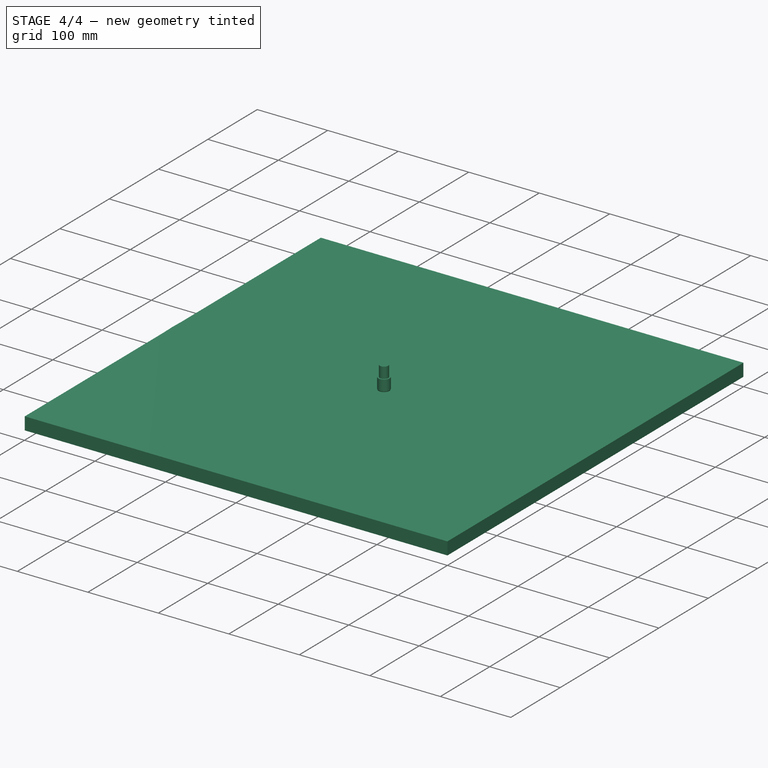
[diagram: stage 4 of 4 — iso view after this stage's code; geometry added in this stage tinted green]
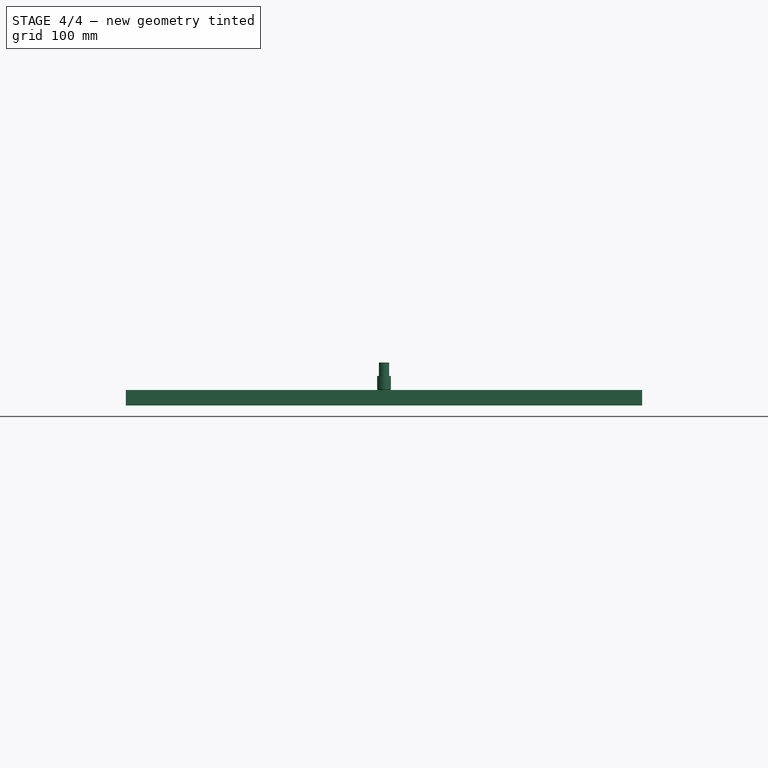
[diagram: stage 4 of 4 — front view after this stage's code; geometry added in this stage tinted green]
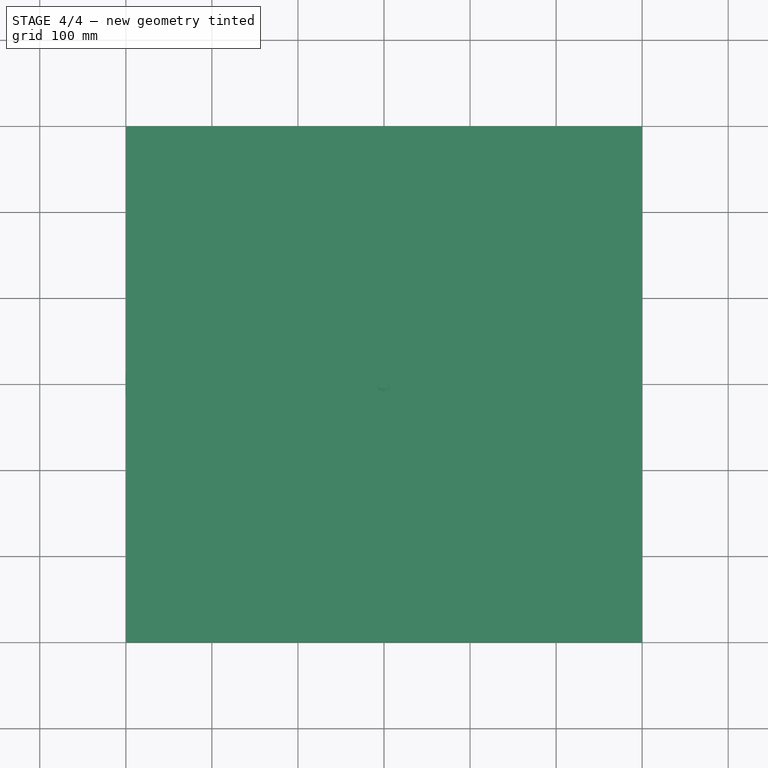
[diagram: stage 4 of 4 — top view after this stage's code; geometry added in this stage tinted green]
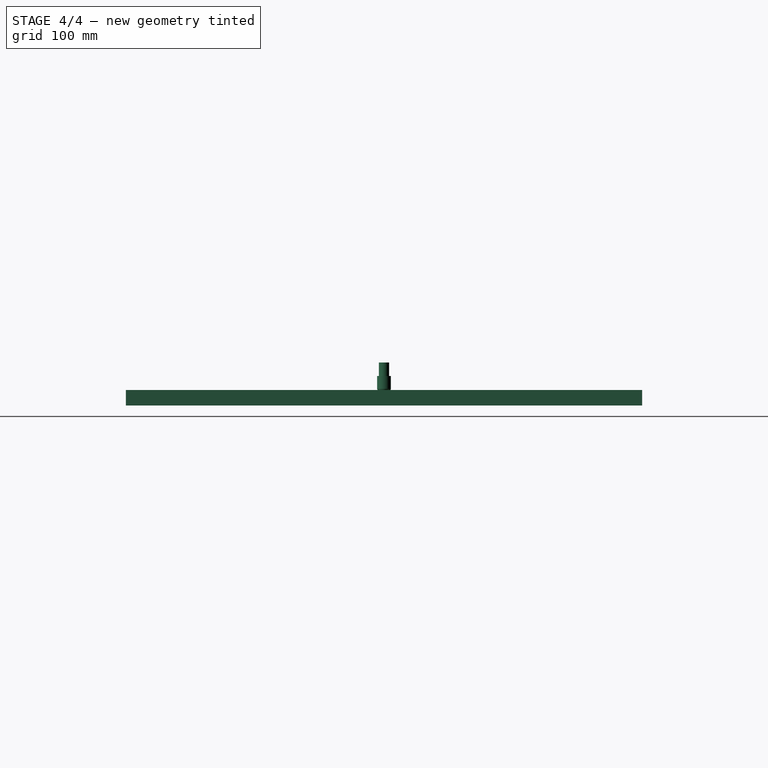
[diagram: stage 4 of 4 — right view after this stage's code; geometry added in this stage tinted green]
FEATURE [App::FeaturePython] SetupSheet  # Path/CAM operation (typed FeaturePython)
  ClearanceHeightExpression = OpStockZMax+SetupSheet.ClearanceHeightOffset
  ClearanceHeightOffset = 5
  CoolantMode = 0
  CoolantModes = None | Flood | Mist
  FinalDepthExpression = OpFinalDepth
  HorizRapid = 0
  SafeHeightExpression = OpStockZMax+SetupSheet.SafeHeightOffset
  SafeHeightOffset = 3
  StartDepthExpression = OpStartDepth
  StepDownExpression = OpToolDiameter
  VertRapid = 0
FEATURE [Part::FeaturePython] Stock001  # WARN: FeaturePython — macro-defined, semantics opaque (R4)
  Height = 18
  Length = 599.03
  Placement = pos=(-299.027,-299.757,0) rot=(0,0,1;0rad)
  StockType = CreateBox
  Width = 599.51
FEATURE [PartDesign::Body] Body
  Group = -> [Sketch,Pad,Sketch001,Pocket,PolarPattern,Sketch002,Pocket001]
  Origin = -> Origin
  Tip = -> Pocket001
FEATURE [Part::FeaturePython] Clone  label="Model-Body"  # Draft clone (typed FeaturePython)
  AttacherType = Attacher::AttachEngine3D
  Fuse = false
  Objects = -> [Body]
  PathResource = Model
  Scale = (1,1,1)
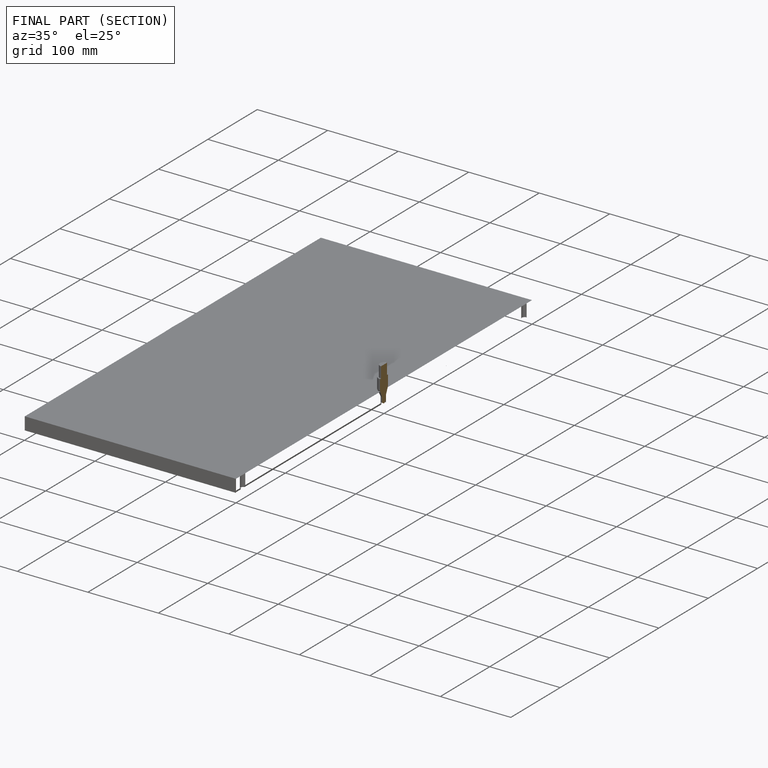
[diagram: finished part — half-section view (interior)]
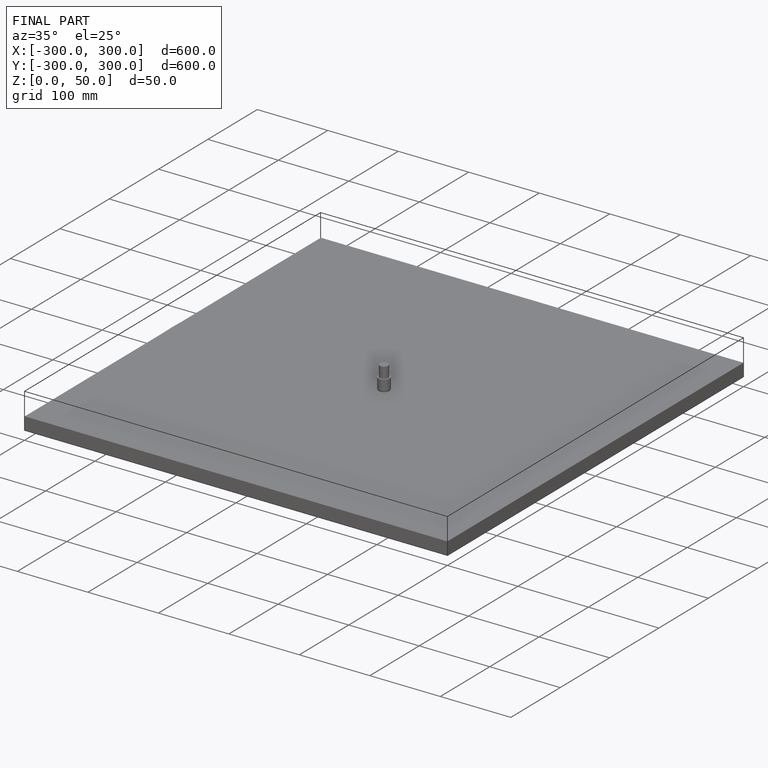
[diagram: finished part — iso view with bounding-box wireframe]
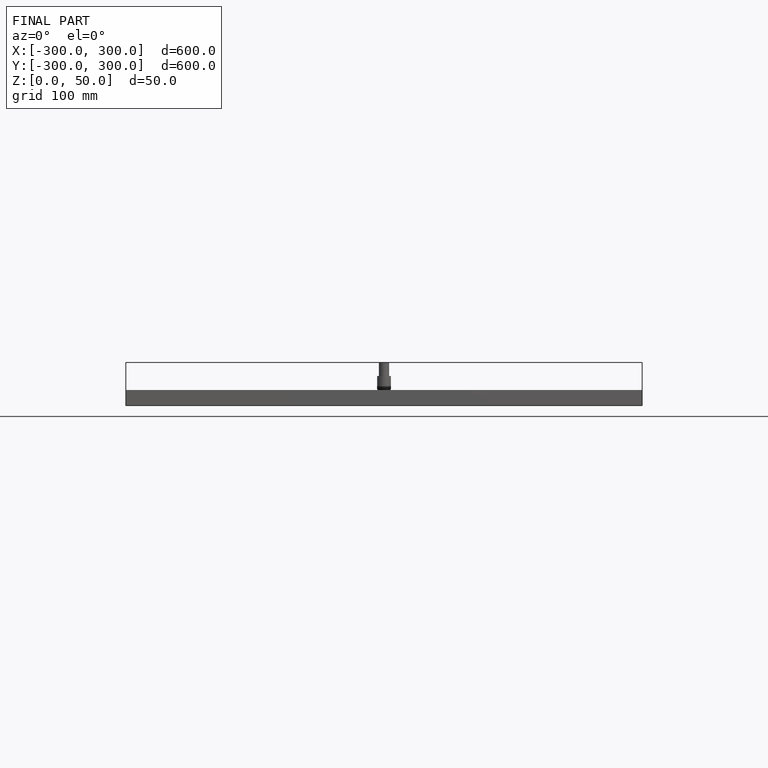
[diagram: finished part — front view with bounding-box wireframe]
